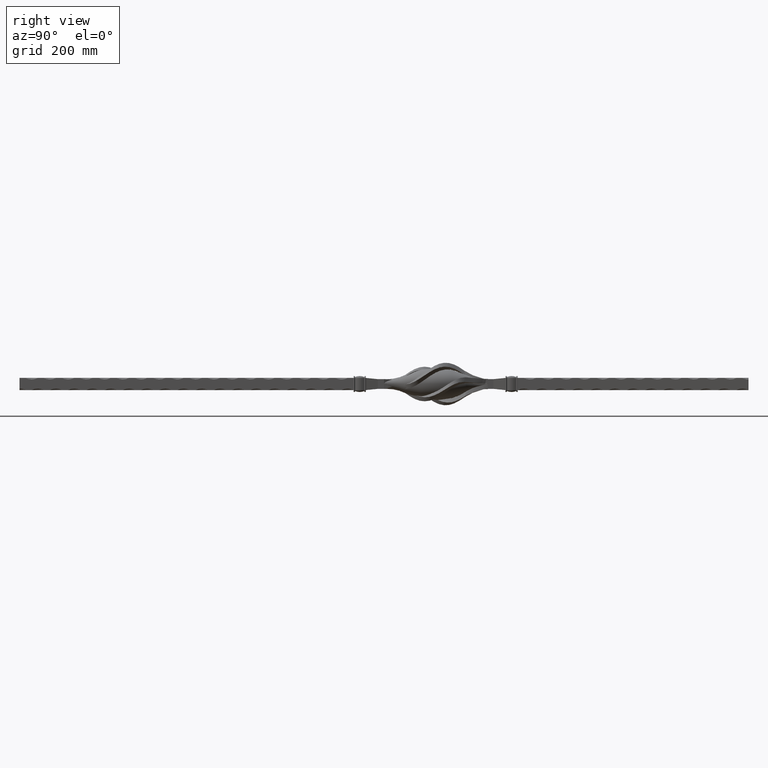
[diagram: clean part render]
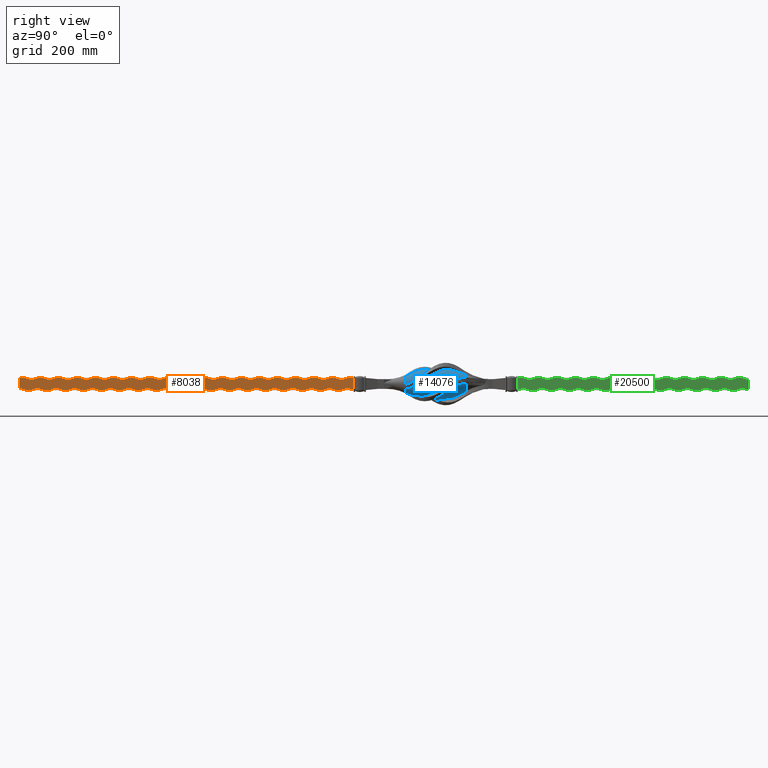
[diagram: same view with three faces highlighted in distinct colors, each labeled with its STEP entity id]
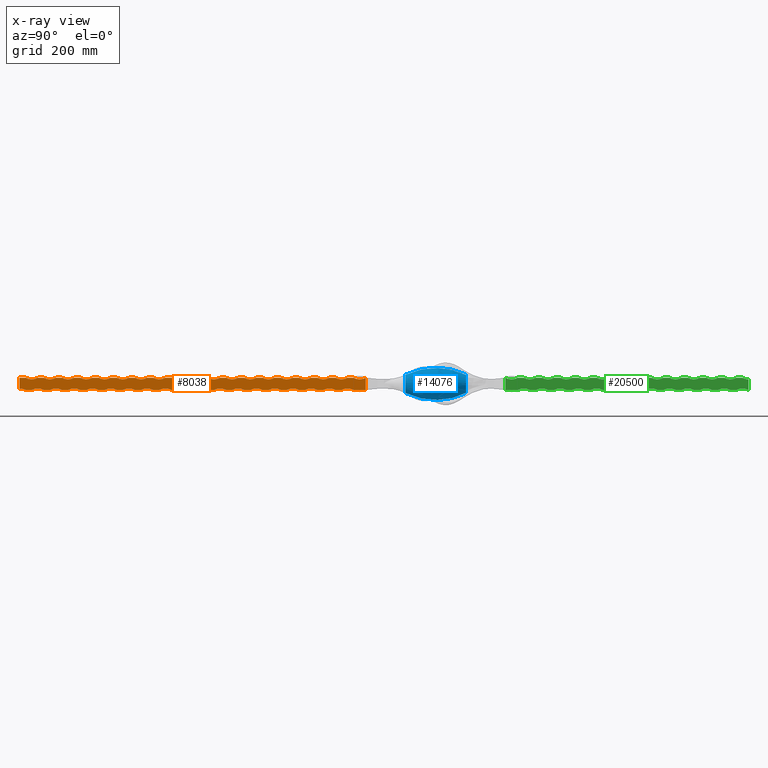
[diagram: x-ray of the same camera — body ghosted, the three highlighted faces saturated]
A machine part, right view with three faces highlighted in distinct colors.
The next image is the same camera in x-ray (body ghosted, the three faces saturated) — at least one of them is partly hidden behind the body in this view.
Their STEP definitions:

[orange] entity #8038 — the highlighted planar face has unit normal (-1, 0, 0).
#8 = DIRECTION ( 'NONE',  ( 8.163404592832022872E-17, 0.000000000000000000, 1.000000000000000000 ) ) ;
#29 = VERTEX_POINT ( 'NONE', #28721 ) ;
#70 = VECTOR ( 'NONE', #2342, 1000.000000000000000 ) ;
#85 = VERTEX_POINT ( 'NONE', #8922 ) ;
#120 = DIRECTION ( 'NONE',  ( -1.000000000000000000, 0.000000000000000000, 8.673617379884035472E-17 ) ) ;
#206 = VERTEX_POINT ( 'NONE', #24810 ) ;
#291 = CIRCLE ( 'NONE', #17628, 21.25000000000002842 ) ;
#303 = DIRECTION ( 'NONE',  ( 8.163404592832021640E-17, 0.000000000000000000, 1.000000000000000000 ) ) ;
#470 = EDGE_CURVE ( 'NONE', #749, #206, #23039, .T. ) ;
#505 = DIRECTION ( 'NONE',  ( -1.000000000000000000, 0.000000000000000000, 8.673617379884035472E-17 ) ) ;
#511 = EDGE_CURVE ( 'NONE', #17824, #22386, #21301, .T. ) ;
#518 = LINE ( 'NONE', #10863, #27985 ) ;
#532 = DIRECTION ( 'NONE',  ( 8.163404592832022872E-17, 0.000000000000000000, 1.000000000000000000 ) ) ;
#582 = AXIS2_PLACEMENT_3D ( 'NONE', #16273, #2916, #18503 ) ;
#608 = CARTESIAN_POINT ( 'NONE',  ( 9.999999999998077982, -485.0000000000000568, 28.75000000000003908 ) ) ;
#703 = DIRECTION ( 'NONE',  ( -0.000000000000000000, 1.000000000000000000, -0.000000000000000000 ) ) ;
#749 = VERTEX_POINT ( 'NONE', #9584 ) ;
#753 = AXIS2_PLACEMENT_3D ( 'NONE', #11859, #27378, #20710 ) ;
#754 = CARTESIAN_POINT ( 'NONE',  ( 10.00000000000000178, -415.0000000000036380, 10.00000000000000533 ) ) ;
#955 = EDGE_CURVE ( 'NONE', #25981, #1370, #25097, .T. ) ;
#1044 = ORIENTED_EDGE ( 'NONE', *, *, #21188, .T. ) ;
#1050 = VERTEX_POINT ( 'NONE', #2952 ) ;
#1162 = VERTEX_POINT ( 'NONE', #19199 ) ;
#1193 = VERTEX_POINT ( 'NONE', #1196 ) ;
#1196 = CARTESIAN_POINT ( 'NONE',  ( 10.00000000000000355, -665.0000000000000000, -10.00000000000193268 ) ) ;
#1198 = ORIENTED_EDGE ( 'NONE', *, *, #8741, .T. ) ;
#1222 = ORIENTED_EDGE ( 'NONE', *, *, #2557, .F. ) ;
#1279 = DIRECTION ( 'NONE',  ( -0.000000000000000000, 1.000000000000000000, -0.000000000000000000 ) ) ;
#1370 = VERTEX_POINT ( 'NONE', #26090 ) ;
#1446 = CARTESIAN_POINT ( 'NONE',  ( 10.00000000000000355, -675.0000000000000000, -10.00000000000193801 ) ) ;
#1455 = ORIENTED_EDGE ( 'NONE', *, *, #15130, .T. ) ;
#1506 = VERTEX_POINT ( 'NONE', #1746 ) ;
#1513 = EDGE_CURVE ( 'NONE', #6374, #21448, #25106, .T. ) ;
#1552 = CARTESIAN_POINT ( 'NONE',  ( 10.00000000000000355, -284.9999999999963052, -9.999999999999994671 ) ) ;
#1592 = DIRECTION ( 'NONE',  ( -1.000000000000000000, 0.000000000000000000, 8.673617379884035472E-17 ) ) ;
#1680 = CARTESIAN_POINT ( 'NONE',  ( 10.00000000000000355, -605.0000000000000000, -10.00000000000127720 ) ) ;
#1695 = LINE ( 'NONE', #26211, #21547 ) ;
#1723 = CARTESIAN_POINT ( 'NONE',  ( 9.999999999999998224, -114.9999999999999858, -9.999999999999994671 ) ) ;
#1726 = ORIENTED_EDGE ( 'NONE', *, *, #24525, .T. ) ;
#1746 = CARTESIAN_POINT ( 'NONE',  ( 10.00000000000000355, -434.9999999999993747, -9.999999999999994671 ) ) ;
#1804 = EDGE_CURVE ( 'NONE', #23132, #23990, #22986, .T. ) ;
#1927 = ORIENTED_EDGE ( 'NONE', *, *, #470, .F. ) ;
#1967 = DIRECTION ( 'NONE',  ( 8.163404592832021640E-17, 0.000000000000000000, 1.000000000000000000 ) ) ;
#2056 = VERTEX_POINT ( 'NONE', #24534 ) ;
#2099 = CARTESIAN_POINT ( 'NONE',  ( 10.00000000000000000, -175.0000000000036664, 10.00000000000000533 ) ) ;
#2280 = CARTESIAN_POINT ( 'NONE',  ( 10.00000000000000178, -385.0000000000000000, -28.74999999999900879 ) ) ;
#2298 = CARTESIAN_POINT ( 'NONE',  ( 9.999999999998074429, -315.0000000000000568, 10.00000000000000533 ) ) ;
#2340 = ORIENTED_EDGE ( 'NONE', *, *, #9283, .T. ) ;
#2342 = DIRECTION ( 'NONE',  ( -0.000000000000000000, 1.000000000000000000, -0.000000000000000000 ) ) ;
#2361 = DIRECTION ( 'NONE',  ( 8.163404592832022872E-17, 0.000000000000000000, 1.000000000000000000 ) ) ;
#2373 = CIRCLE ( 'NONE', #23271, 21.25000000000003197 ) ;
#2375 = ORIENTED_EDGE ( 'NONE', *, *, #4495, .F. ) ;
#2427 = DIRECTION ( 'NONE',  ( -0.000000000000000000, 1.000000000000000000, -0.000000000000000000 ) ) ;
#2457 = CARTESIAN_POINT ( 'NONE',  ( 10.00000000000000178, -355.0000000000000568, -28.74999999999867839 ) ) ;
#2472 = CARTESIAN_POINT ( 'NONE',  ( 10.00000000000000178, -625.0000000000036380, 10.00000000000000533 ) ) ;
#2557 = EDGE_CURVE ( 'NONE', #23431, #27333, #13601, .T. ) ;
#2609 = CARTESIAN_POINT ( 'NONE',  ( 9.999999999998074429, -255.0000000000000568, 10.00000000000000533 ) ) ;
#2619 = ORIENTED_EDGE ( 'NONE', *, *, #20930, .F. ) ;
#2674 = DIRECTION ( 'NONE',  ( 8.163404592832021640E-17, 0.000000000000000000, 1.000000000000000000 ) ) ;
#2691 = LINE ( 'NONE', #10883, #17315 ) ;
#2817 = ORIENTED_EDGE ( 'NONE', *, *, #3072, .T. ) ;
#2837 = LINE ( 'NONE', #16025, #27169 ) ;
#2916 = DIRECTION ( 'NONE',  ( -1.000000000000000000, 0.000000000000000000, 8.673617379884035472E-17 ) ) ;
#2931 = LINE ( 'NONE', #11628, #5359 ) ;
#2952 = CARTESIAN_POINT ( 'NONE',  ( 9.999999999998076206, -555.0000000000000000, 10.00000000000000533 ) ) ;
#3035 = ORIENTED_EDGE ( 'NONE', *, *, #18754, .T. ) ;
#3047 = CARTESIAN_POINT ( 'NONE',  ( 10.00000000000000355, -374.9999999999981242, -9.999999999999994671 ) ) ;
#3072 = EDGE_CURVE ( 'NONE', #23431, #16073, #12861, .T. ) ;
#3096 = EDGE_CURVE ( 'NONE', #25824, #25330, #28137, .T. ) ;
#3115 = VECTOR ( 'NONE', #8339, 1000.000000000000000 ) ;
#3236 = EDGE_CURVE ( 'NONE', #25499, #28224, #6907, .T. ) ;
#3282 = AXIS2_PLACEMENT_3D ( 'NONE', #5531, #23198, #16632 ) ;
#3301 = DIRECTION ( 'NONE',  ( -0.000000000000000000, 1.000000000000000000, -0.000000000000000000 ) ) ;
#3311 = AXIS2_PLACEMENT_3D ( 'NONE', #10440, #17236, #10815 ) ;
#3324 = DIRECTION ( 'NONE',  ( -1.000000000000000000, 0.000000000000000000, 8.673617379884035472E-17 ) ) ;
#3450 = DIRECTION ( 'NONE',  ( 8.673617379884035472E-17, 0.000000000000000000, 1.000000000000000000 ) ) ;
#3463 = CARTESIAN_POINT ( 'NONE',  ( 10.00000000000000178, -175.0000000000000568, -28.74999999999671729 ) ) ;
#3602 = VERTEX_POINT ( 'NONE', #8632 ) ;
#3721 = ORIENTED_EDGE ( 'NONE', *, *, #9066, .T. ) ;
#3743 = AXIS2_PLACEMENT_3D ( 'NONE', #18105, #20436, #16169 ) ;
#3831 = VERTEX_POINT ( 'NONE', #2298 ) ;
#3926 = DIRECTION ( 'NONE',  ( 8.163404592832022872E-17, 0.000000000000000000, 1.000000000000000000 ) ) ;
#3989 = CARTESIAN_POINT ( 'NONE',  ( 10.00000000000000355, -464.9999999999999432, -9.999999999999994671 ) ) ;
#4066 = LINE ( 'NONE', #14341, #25331 ) ;
#4095 = ORIENTED_EDGE ( 'NONE', *, *, #25397, .T. ) ;
#4097 = AXIS2_PLACEMENT_3D ( 'NONE', #23588, #21366, #3926 ) ;
#4137 = AXIS2_PLACEMENT_3D ( 'NONE', #16338, #27179, #15960 ) ;
#4153 = EDGE_CURVE ( 'NONE', #85, #5498, #2373, .T. ) ;
#4210 = CARTESIAN_POINT ( 'NONE',  ( 10.00000000000000355, -215.0000000000000853, -9.999999999997013944 ) ) ;
#4232 = DIRECTION ( 'NONE',  ( 8.163404592832021640E-17, 0.000000000000000000, 1.000000000000000000 ) ) ;
#4276 = EDGE_CURVE ( 'NONE', #15753, #11806, #4066, .T. ) ;
#4390 = CIRCLE ( 'NONE', #3743, 21.25000000000003197 ) ;
#4411 = EDGE_CURVE ( 'NONE', #17824, #12504, #12126, .T. ) ;
#4412 = EDGE_CURVE ( 'NONE', #10264, #1506, #9300, .T. ) ;
#4427 = DIRECTION ( 'NONE',  ( -1.000000000000000000, 0.000000000000000000, 8.673617379884035472E-17 ) ) ;
#4495 = EDGE_CURVE ( 'NONE', #17465, #23522, #2691, .T. ) ;
#4542 = DIRECTION ( 'NONE',  ( 8.163404592832022872E-17, 0.000000000000000000, 1.000000000000000000 ) ) ;
#4569 = CARTESIAN_POINT ( 'NONE',  ( 9.999999999999998224, -130.0000000000000000, -9.999999999999994671 ) ) ;
#4624 = ORIENTED_EDGE ( 'NONE', *, *, #7879, .F. ) ;
#4640 = EDGE_CURVE ( 'NONE', #22113, #28259, #18716, .T. ) ;
#4642 = CARTESIAN_POINT ( 'NONE',  ( 10.00000000000000000, -130.0000000000000000, 10.00000000000000533 ) ) ;
#4680 = CARTESIAN_POINT ( 'NONE',  ( 9.999999999998076206, -125.0000000000000000, 28.75000000000003908 ) ) ;
#4697 = VECTOR ( 'NONE', #8727, 1000.000000000000000 ) ;
#4761 = CARTESIAN_POINT ( 'NONE',  ( 10.00000000000000000, -130.0000000000000000, 10.00000000000000533 ) ) ;
#4797 = VERTEX_POINT ( 'NONE', #17363 ) ;
#4912 = DIRECTION ( 'NONE',  ( -0.000000000000000000, 1.000000000000000000, -0.000000000000000000 ) ) ;
#4974 = DIRECTION ( 'NONE',  ( -0.000000000000000000, 1.000000000000000000, -0.000000000000000000 ) ) ;
#5006 = LINE ( 'NONE', #14058, #9165 ) ;
#5037 = EDGE_CURVE ( 'NONE', #9529, #206, #25297, .T. ) ;
#5085 = DIRECTION ( 'NONE',  ( 8.163404592832021640E-17, 0.000000000000000000, 1.000000000000000000 ) ) ;
#5101 = CARTESIAN_POINT ( 'NONE',  ( 9.999999999999998224, -130.0000000000000000, -9.999999999999994671 ) ) ;
#5121 = ORIENTED_EDGE ( 'NONE', *, *, #5992, .T. ) ;
#5148 = DIRECTION ( 'NONE',  ( -0.000000000000000000, 1.000000000000000000, -0.000000000000000000 ) ) ;
#5155 = VERTEX_POINT ( 'NONE', #13783 ) ;
#5175 = VERTEX_POINT ( 'NONE', #7315 ) ;
#5203 = ORIENTED_EDGE ( 'NONE', *, *, #6638, .T. ) ;
#5244 = CARTESIAN_POINT ( 'NONE',  ( 10.00000000000000355, -314.9999999999969305, -9.999999999999994671 ) ) ;
#5345 = EDGE_CURVE ( 'NONE', #26759, #29, #7875, .T. ) ;
#5349 = ORIENTED_EDGE ( 'NONE', *, *, #25182, .F. ) ;
#5359 = VECTOR ( 'NONE', #27134, 1000.000000000000000 ) ;
#5424 = VECTOR ( 'NONE', #17797, 1000.000000000000000 ) ;
#5498 = VERTEX_POINT ( 'NONE', #24476 ) ;
#5512 = VERTEX_POINT ( 'NONE', #22331 ) ;
#5531 = CARTESIAN_POINT ( 'NONE',  ( 10.00000000000000178, -295.0000000000000568, -28.74999999999802824 ) ) ;
#5550 = CIRCLE ( 'NONE', #21647, 21.25000000000002842 ) ;
#5562 = CARTESIAN_POINT ( 'NONE',  ( 10.00000000000000355, -254.9999999999956231, -9.999999999999994671 ) ) ;
#5567 = LINE ( 'NONE', #21528, #22594 ) ;
#5577 = AXIS2_PLACEMENT_3D ( 'NONE', #26450, #8966, #11243 ) ;
#5619 = AXIS2_PLACEMENT_3D ( 'NONE', #3463, #1592, #12442 ) ;
#5688 = ORIENTED_EDGE ( 'NONE', *, *, #1513, .T. ) ;
#5760 = ORIENTED_EDGE ( 'NONE', *, *, #26746, .T. ) ;
#5785 = CARTESIAN_POINT ( 'NONE',  ( 10.00000000000000178, -445.0000000000036948, 10.00000000000000533 ) ) ;
#5786 = EDGE_CURVE ( 'NONE', #2056, #24458, #24003, .T. ) ;
#5808 = VERTEX_POINT ( 'NONE', #1446 ) ;
#5905 = LINE ( 'NONE', #17758, #12884 ) ;
#5938 = VECTOR ( 'NONE', #9270, 1000.000000000000000 ) ;
#5957 = DIRECTION ( 'NONE',  ( 8.163404592832022872E-17, 0.000000000000000000, 1.000000000000000000 ) ) ;
#5992 = EDGE_CURVE ( 'NONE', #10612, #20402, #291, .T. ) ;
#6155 = CARTESIAN_POINT ( 'NONE',  ( 9.999999999999998224, -130.0000000000000000, -9.999999999999994671 ) ) ;
#6273 = LINE ( 'NONE', #7659, #27530 ) ;
#6324 = DIRECTION ( 'NONE',  ( -8.673617379884035472E-17, 0.000000000000000000, -1.000000000000000000 ) ) ;
#6356 = EDGE_CURVE ( 'NONE', #25741, #21919, #12132, .T. ) ;
#6374 = VERTEX_POINT ( 'NONE', #2472 ) ;
#6499 = ORIENTED_EDGE ( 'NONE', *, *, #26285, .T. ) ;
#6638 = EDGE_CURVE ( 'NONE', #22047, #19713, #11431, .T. ) ;
#6729 = EDGE_CURVE ( 'NONE', #22047, #18749, #14886, .T. ) ;
#6768 = EDGE_CURVE ( 'NONE', #15829, #25824, #7545, .T. ) ;
#6907 = CIRCLE ( 'NONE', #5577, 21.25000000000002842 ) ;
#6920 = CARTESIAN_POINT ( 'NONE',  ( 9.999999999999998224, -130.0000000000000000, -9.999999999999994671 ) ) ;
#6929 = DIRECTION ( 'NONE',  ( -1.000000000000000000, 0.000000000000000000, 8.673617379884035472E-17 ) ) ;
#6946 = DIRECTION ( 'NONE',  ( -0.000000000000000000, 1.000000000000000000, -0.000000000000000000 ) ) ;
#6999 = AXIS2_PLACEMENT_3D ( 'NONE', #15929, #6929, #2674 ) ;
#7013 = DIRECTION ( 'NONE',  ( -0.000000000000000000, 1.000000000000000000, -0.000000000000000000 ) ) ;
#7039 = AXIS2_PLACEMENT_3D ( 'NONE', #2280, #20211, #8983 ) ;
#7118 = DIRECTION ( 'NONE',  ( -0.000000000000000000, 1.000000000000000000, -0.000000000000000000 ) ) ;
#7212 = LINE ( 'NONE', #22653, #24262 ) ;
#7299 = VERTEX_POINT ( 'NONE', #21726 ) ;
#7315 = CARTESIAN_POINT ( 'NONE',  ( 10.00000000000000355, -404.9999999999987494, -9.999999999999994671 ) ) ;
#7333 = VECTOR ( 'NONE', #26366, 1000.000000000000000 ) ;
#7538 = EDGE_LOOP ( 'NONE', ( #11810, #1044, #11731, #18192, #25469, #8233, #13310, #8248, #6499, #15049, #5203, #23495, #20780, #4624, #15686, #11126, #2340, #15375, #22230, #14007, #25451, #1927, #22878, #5349, #20242, #23211, #25244, #2375, #22713, #1222, #2817, #27455, #20339, #2619, #14996, #19383, #3035, #13758, #5688, #20290, #26243, #13259, #20691, #1455, #9504, #13257, #11457, #25867, #4095, #9841, #16222, #24472, #12780, #17061, #24517, #22566, #24910, #17034, #15514, #10728, #12712, #3721, #27540, #1726, #15630, #21194, #16196, #26764, #12511, #1198, #21270, #18031, #22880, #25290, #5760, #5121, #25213, #28718 ) ) ;
#7545 = CIRCLE ( 'NONE', #21010, 21.25000000000002842 ) ;
#7611 = CARTESIAN_POINT ( 'NONE',  ( 9.999999999999998224, -130.0000000000000000, -9.999999999999994671 ) ) ;
#7659 = CARTESIAN_POINT ( 'NONE',  ( 9.999999999999998224, -130.0000000000000000, -9.999999999999994671 ) ) ;
#7693 = VERTEX_POINT ( 'NONE', #5244 ) ;
#7725 = LINE ( 'NONE', #21985, #19897 ) ;
#7875 = CIRCLE ( 'NONE', #582, 21.25000000000002842 ) ;
#7879 = EDGE_CURVE ( 'NONE', #17820, #25334, #518, .T. ) ;
#7892 = VERTEX_POINT ( 'NONE', #12136 ) ;
#7894 = AXIS2_PLACEMENT_3D ( 'NONE', #16676, #3324, #11911 ) ;
#7951 = VECTOR ( 'NONE', #18584, 1000.000000000000000 ) ;
#8012 = CARTESIAN_POINT ( 'NONE',  ( 9.999999999999998224, -130.0000000000000000, -9.999999999999994671 ) ) ;
#8031 = AXIS2_PLACEMENT_3D ( 'NONE', #8955, #13182, #1967 ) ;
#8038 = ADVANCED_FACE ( 'NONE', ( #20005 ), #25609, .F. ) ;
#8062 = DIRECTION ( 'NONE',  ( 8.163404592832021640E-17, 0.000000000000000000, 1.000000000000000000 ) ) ;
#8063 = DIRECTION ( 'NONE',  ( -1.000000000000000000, 0.000000000000000000, 8.673617379884035472E-17 ) ) ;
#8148 = DIRECTION ( 'NONE',  ( 8.163404592832022872E-17, 0.000000000000000000, 1.000000000000000000 ) ) ;
#8220 = LINE ( 'NONE', #26732, #13100 ) ;
#8233 = ORIENTED_EDGE ( 'NONE', *, *, #4411, .F. ) ;
#8235 = CARTESIAN_POINT ( 'NONE',  ( 10.00000000000000355, -515.0000000000000000, -10.00000000000029310 ) ) ;
#8248 = ORIENTED_EDGE ( 'NONE', *, *, #26902, .F. ) ;
#8250 = CARTESIAN_POINT ( 'NONE',  ( 10.00000000000000000, -130.0000000000000000, 10.00000000000000533 ) ) ;
#8283 = DIRECTION ( 'NONE',  ( -0.000000000000000000, 1.000000000000000000, -0.000000000000000000 ) ) ;
#8339 = DIRECTION ( 'NONE',  ( -0.000000000000000000, 1.000000000000000000, -0.000000000000000000 ) ) ;
#8372 = CARTESIAN_POINT ( 'NONE',  ( 9.999999999999998224, -130.0000000000000000, -9.999999999999994671 ) ) ;
#8383 = CARTESIAN_POINT ( 'NONE',  ( 10.00000000000000355, -545.0000000000000000, -10.00000000000062172 ) ) ;
#8393 = CARTESIAN_POINT ( 'NONE',  ( 9.999999999999998224, -130.0000000000000000, -9.999999999999994671 ) ) ;
#8476 = VECTOR ( 'NONE', #2427, 1000.000000000000000 ) ;
#8485 = DIRECTION ( 'NONE',  ( 8.163404592832022872E-17, 0.000000000000000000, 1.000000000000000000 ) ) ;
#8531 = CIRCLE ( 'NONE', #4097, 21.25000000000002842 ) ;
#8632 = CARTESIAN_POINT ( 'NONE',  ( 10.00000000000000355, -134.9999999999931788, -9.999999999999994671 ) ) ;
#8633 = CARTESIAN_POINT ( 'NONE',  ( 10.00000000000000355, -495.0000000000005684, -9.999999999999994671 ) ) ;
#8727 = DIRECTION ( 'NONE',  ( -0.000000000000000000, 1.000000000000000000, -0.000000000000000000 ) ) ;
#8738 = DIRECTION ( 'NONE',  ( 8.163404592832021640E-17, 0.000000000000000000, 1.000000000000000000 ) ) ;
#8741 = EDGE_CURVE ( 'NONE', #7299, #16811, #25178, .T. ) ;
#8922 = CARTESIAN_POINT ( 'NONE',  ( 10.00000000000000178, -655.0000000000036380, 10.00000000000000533 ) ) ;
#8955 = CARTESIAN_POINT ( 'NONE',  ( 9.999999999998076206, -365.0000000000000568, 28.75000000000003908 ) ) ;
#8966 = DIRECTION ( 'NONE',  ( -1.000000000000000000, 0.000000000000000000, 8.673617379884035472E-17 ) ) ;
#8983 = DIRECTION ( 'NONE',  ( 8.163404592832022872E-17, 0.000000000000000000, 1.000000000000000000 ) ) ;
#9046 = VERTEX_POINT ( 'NONE', #13199 ) ;
#9066 = EDGE_CURVE ( 'NONE', #5512, #5175, #11266, .T. ) ;
#9136 = DIRECTION ( 'NONE',  ( -0.000000000000000000, 1.000000000000000000, -0.000000000000000000 ) ) ;
#9146 = DIRECTION ( 'NONE',  ( 8.163404592832022872E-17, 0.000000000000000000, 1.000000000000000000 ) ) ;
#9165 = VECTOR ( 'NONE', #7013, 1000.000000000000000 ) ;
#9270 = DIRECTION ( 'NONE',  ( -0.000000000000000000, 1.000000000000000000, -0.000000000000000000 ) ) ;
#9283 = EDGE_CURVE ( 'NONE', #26818, #3831, #27224, .T. ) ;
#9300 = CIRCLE ( 'NONE', #13652, 21.25000000000002842 ) ;
#9398 = CARTESIAN_POINT ( 'NONE',  ( 9.999999999998076206, -525.0000000000000000, 10.00000000000000533 ) ) ;
#9399 = VERTEX_POINT ( 'NONE', #12601 ) ;
#9483 = AXIS2_PLACEMENT_3D ( 'NONE', #10653, #15139, #28132 ) ;
#9504 = ORIENTED_EDGE ( 'NONE', *, *, #13672, .T. ) ;
#9529 = VERTEX_POINT ( 'NONE', #22268 ) ;
#9541 = CARTESIAN_POINT ( 'NONE',  ( 9.999999999998077982, -665.0000000000000000, 28.75000000000003908 ) ) ;
#9551 = CARTESIAN_POINT ( 'NONE',  ( 10.00000000000000000, -130.0000000000000000, 10.00000000000000533 ) ) ;
#9579 = EDGE_CURVE ( 'NONE', #20402, #22113, #24436, .T. ) ;
#9584 = CARTESIAN_POINT ( 'NONE',  ( 10.00000000000000178, -385.0000000000036380, 10.00000000000000533 ) ) ;
#9638 = EDGE_CURVE ( 'NONE', #15670, #25334, #28582, .T. ) ;
#9674 = CARTESIAN_POINT ( 'NONE',  ( 9.999999999998076206, -465.0000000000000568, 10.00000000000000533 ) ) ;
#9841 = ORIENTED_EDGE ( 'NONE', *, *, #5345, .T. ) ;
#9934 = CARTESIAN_POINT ( 'NONE',  ( 10.00000000000000355, -155.0000000000000284, -9.999999999996358468 ) ) ;
#10220 = CARTESIAN_POINT ( 'NONE',  ( 9.999999999999998224, -130.0000000000000000, -9.999999999999994671 ) ) ;
#10260 = CARTESIAN_POINT ( 'NONE',  ( 9.999999999999998224, -130.0000000000000000, -9.999999999999994671 ) ) ;
#10264 = VERTEX_POINT ( 'NONE', #23498 ) ;
#10346 = DIRECTION ( 'NONE',  ( -1.000000000000000000, 0.000000000000000000, 8.673617379884035472E-17 ) ) ;
#10413 = DIRECTION ( 'NONE',  ( 8.163404592832022872E-17, 0.000000000000000000, 1.000000000000000000 ) ) ;
#10440 = CARTESIAN_POINT ( 'NONE',  ( 9.999999999998077982, -635.0000000000000000, 28.75000000000003908 ) ) ;
#10454 = CIRCLE ( 'NONE', #25292, 21.25000000000002842 ) ;
#10465 = DIRECTION ( 'NONE',  ( 8.163404592832022872E-17, 0.000000000000000000, 1.000000000000000000 ) ) ;
#10557 = AXIS2_PLACEMENT_3D ( 'NONE', #19292, #10346, #14654 ) ;
#10612 = VERTEX_POINT ( 'NONE', #4210 ) ;
#10628 = DIRECTION ( 'NONE',  ( -1.000000000000000000, 0.000000000000000000, 8.673617379884035472E-17 ) ) ;
#10640 = CARTESIAN_POINT ( 'NONE',  ( 9.999999999999998224, -130.0000000000000000, -9.999999999999994671 ) ) ;
#10653 = CARTESIAN_POINT ( 'NONE',  ( 9.999999999998077982, -515.0000000000000000, 28.75000000000003908 ) ) ;
#10728 = ORIENTED_EDGE ( 'NONE', *, *, #4412, .T. ) ;
#10743 = CARTESIAN_POINT ( 'NONE',  ( 10.00000000000000000, -295.0000000000036380, 10.00000000000000533 ) ) ;
#10750 = EDGE_CURVE ( 'NONE', #22141, #12052, #11895, .T. ) ;
#10779 = EDGE_CURVE ( 'NONE', #15670, #19713, #2837, .T. ) ;
#10783 = EDGE_CURVE ( 'NONE', #12572, #10264, #24380, .T. ) ;
#10815 = DIRECTION ( 'NONE',  ( 8.163404592832021640E-17, 0.000000000000000000, 1.000000000000000000 ) ) ;
#10863 = CARTESIAN_POINT ( 'NONE',  ( 10.00000000000000000, -130.0000000000000000, 10.00000000000000533 ) ) ;
#10883 = CARTESIAN_POINT ( 'NONE',  ( 10.00000000000000000, -130.0000000000000000, 10.00000000000000533 ) ) ;
#10936 = DIRECTION ( 'NONE',  ( -0.000000000000000000, 1.000000000000000000, -0.000000000000000000 ) ) ;
#10976 = CARTESIAN_POINT ( 'NONE',  ( 10.00000000000000178, -325.0000000000000568, -28.74999999999835154 ) ) ;
#11126 = ORIENTED_EDGE ( 'NONE', *, *, #15558, .F. ) ;
#11243 = DIRECTION ( 'NONE',  ( 8.163404592832022872E-17, 0.000000000000000000, 1.000000000000000000 ) ) ;
#11266 = CIRCLE ( 'NONE', #25631, 21.25000000000002842 ) ;
#11312 = EDGE_CURVE ( 'NONE', #9046, #12504, #27139, .T. ) ;
#11326 = LINE ( 'NONE', #28754, #4697 ) ;
#11357 = LINE ( 'NONE', #4569, #5424 ) ;
#11411 = CARTESIAN_POINT ( 'NONE',  ( 9.999999999998076206, -495.0000000000000568, 10.00000000000000533 ) ) ;
#11414 = CARTESIAN_POINT ( 'NONE',  ( 10.00000000000000000, -235.0000000000036380, 10.00000000000000533 ) ) ;
#11431 = CIRCLE ( 'NONE', #10557, 21.25000000000003197 ) ;
#11457 = ORIENTED_EDGE ( 'NONE', *, *, #19396, .T. ) ;
#11516 = CARTESIAN_POINT ( 'NONE',  ( 9.999999999998077982, -425.0000000000000568, 28.75000000000003908 ) ) ;
#11584 = CARTESIAN_POINT ( 'NONE',  ( 9.999999999998074429, -685.0000000000000000, 10.00000000000000533 ) ) ;
#11598 = VERTEX_POINT ( 'NONE', #1723 ) ;
#11628 = CARTESIAN_POINT ( 'NONE',  ( 10.00000000000000000, -130.0000000000000000, 10.00000000000000533 ) ) ;
#11656 = DIRECTION ( 'NONE',  ( -1.000000000000000000, 0.000000000000000000, 8.673617379884035472E-17 ) ) ;
#11731 = ORIENTED_EDGE ( 'NONE', *, *, #23042, .T. ) ;
#11756 = VERTEX_POINT ( 'NONE', #754 ) ;
#11806 = VERTEX_POINT ( 'NONE', #11584 ) ;
#11810 = ORIENTED_EDGE ( 'NONE', *, *, #24714, .T. ) ;
#11859 = CARTESIAN_POINT ( 'NONE',  ( 9.999999999998076206, -275.0000000000000000, 28.75000000000003908 ) ) ;
#11895 = LINE ( 'NONE', #5101, #15362 ) ;
#11911 = DIRECTION ( 'NONE',  ( 8.163404592832022872E-17, 0.000000000000000000, 1.000000000000000000 ) ) ;
#11982 = CARTESIAN_POINT ( 'NONE',  ( 10.00000000000000000, -130.0000000000000000, 10.00000000000000533 ) ) ;
#12052 = VERTEX_POINT ( 'NONE', #8383 ) ;
#12126 = LINE ( 'NONE', #26212, #20112 ) ;
#12132 = CIRCLE ( 'NONE', #6999, 21.25000000000003197 ) ;
#12136 = CARTESIAN_POINT ( 'NONE',  ( 10.00000000000000000, -325.0000000000036948, 10.00000000000000533 ) ) ;
#12200 = DIRECTION ( 'NONE',  ( -1.000000000000000000, 0.000000000000000000, 8.673617379884035472E-17 ) ) ;
#12330 = DIRECTION ( 'NONE',  ( -1.000000000000000000, 0.000000000000000000, 8.673617379884035472E-17 ) ) ;
#12442 = DIRECTION ( 'NONE',  ( 8.163404592832022872E-17, 0.000000000000000000, 1.000000000000000000 ) ) ;
#12458 = LINE ( 'NONE', #13847, #22492 ) ;
#12482 = AXIS2_PLACEMENT_3D ( 'NONE', #17634, #19871, #8 ) ;
#12488 = DIRECTION ( 'NONE',  ( 8.163404592832021640E-17, 0.000000000000000000, 1.000000000000000000 ) ) ;
#12504 = VERTEX_POINT ( 'NONE', #21783 ) ;
#12511 = ORIENTED_EDGE ( 'NONE', *, *, #26146, .T. ) ;
#12525 = DIRECTION ( 'NONE',  ( -0.000000000000000000, 1.000000000000000000, -0.000000000000000000 ) ) ;
#12554 = CIRCLE ( 'NONE', #18252, 21.25000000000002842 ) ;
#12572 = VERTEX_POINT ( 'NONE', #3989 ) ;
#12601 = CARTESIAN_POINT ( 'NONE',  ( 9.999999999998076206, -435.0000000000000568, 10.00000000000000533 ) ) ;
#12607 = DIRECTION ( 'NONE',  ( -0.000000000000000000, 1.000000000000000000, -0.000000000000000000 ) ) ;
#12619 = DIRECTION ( 'NONE',  ( -0.000000000000000000, 1.000000000000000000, -0.000000000000000000 ) ) ;
#12652 = DIRECTION ( 'NONE',  ( -1.000000000000000000, 0.000000000000000000, 8.673617379884035472E-17 ) ) ;
#12712 = ORIENTED_EDGE ( 'NONE', *, *, #23245, .T. ) ;
#12734 = VECTOR ( 'NONE', #14355, 1000.000000000000000 ) ;
#12780 = ORIENTED_EDGE ( 'NONE', *, *, #10750, .T. ) ;
#12861 = CIRCLE ( 'NONE', #9483, 21.25000000000003197 ) ;
#12884 = VECTOR ( 'NONE', #19907, 1000.000000000000000 ) ;
#12886 = VERTEX_POINT ( 'NONE', #27074 ) ;
#13098 = CARTESIAN_POINT ( 'NONE',  ( 10.00000000000000178, -415.0000000000000568, -28.74999999999933920 ) ) ;
#13100 = VECTOR ( 'NONE', #10936, 1000.000000000000000 ) ;
#13106 = AXIS2_PLACEMENT_3D ( 'NONE', #608, #505, #24913 ) ;
#13175 = CARTESIAN_POINT ( 'NONE',  ( 10.00000000000000355, -555.0000000000018190, -9.999999999999994671 ) ) ;
#13182 = DIRECTION ( 'NONE',  ( -1.000000000000000000, 0.000000000000000000, 8.673617379884035472E-17 ) ) ;
#13186 = EDGE_CURVE ( 'NONE', #1193, #23959, #20820, .T. ) ;
#13199 = CARTESIAN_POINT ( 'NONE',  ( 10.00000000000000000, -114.9999999999999858, 10.00000000000000533 ) ) ;
#13208 = VERTEX_POINT ( 'NONE', #5785 ) ;
#13211 = CIRCLE ( 'NONE', #7039, 21.25000000000002842 ) ;
#13217 = DIRECTION ( 'NONE',  ( 8.163404592832021640E-17, 0.000000000000000000, 1.000000000000000000 ) ) ;
#13239 = CIRCLE ( 'NONE', #21848, 21.25000000000003197 ) ;
#13257 = ORIENTED_EDGE ( 'NONE', *, *, #13186, .T. ) ;
#13258 = DIRECTION ( 'NONE',  ( -1.000000000000000000, 0.000000000000000000, 8.673617379884035472E-17 ) ) ;
#13259 = ORIENTED_EDGE ( 'NONE', *, *, #27504, .F. ) ;
#13299 = EDGE_CURVE ( 'NONE', #23990, #2056, #26701, .T. ) ;
#13310 = ORIENTED_EDGE ( 'NONE', *, *, #511, .T. ) ;
#13373 = AXIS2_PLACEMENT_3D ( 'NONE', #2457, #120, #2361 ) ;
#13402 = EDGE_CURVE ( 'NONE', #7892, #3831, #21527, .T. ) ;
#13575 = CIRCLE ( 'NONE', #4137, 21.25000000000003197 ) ;
#13601 = LINE ( 'NONE', #11982, #17075 ) ;
#13652 = AXIS2_PLACEMENT_3D ( 'NONE', #19728, #21845, #10413 ) ;
#13672 = EDGE_CURVE ( 'NONE', #5808, #1193, #21519, .T. ) ;
#13758 = ORIENTED_EDGE ( 'NONE', *, *, #15702, .F. ) ;
#13762 = LINE ( 'NONE', #10220, #27607 ) ;
#13783 = CARTESIAN_POINT ( 'NONE',  ( 9.999999999998076206, -405.0000000000000000, 10.00000000000000533 ) ) ;
#13847 = CARTESIAN_POINT ( 'NONE',  ( 9.999999999999998224, -130.0000000000000000, -9.999999999999994671 ) ) ;
#13906 = CARTESIAN_POINT ( 'NONE',  ( 9.999999999998074429, -195.0000000000000568, 10.00000000000000533 ) ) ;
#13908 = VECTOR ( 'NONE', #703, 1000.000000000000000 ) ;
#13948 = AXIS2_PLACEMENT_3D ( 'NONE', #24568, #26769, #13217 ) ;
#14007 = ORIENTED_EDGE ( 'NONE', *, *, #19436, .F. ) ;
#14058 = CARTESIAN_POINT ( 'NONE',  ( 10.00000000000000000, -130.0000000000000000, 10.00000000000000533 ) ) ;
#14171 = EDGE_CURVE ( 'NONE', #22421, #21919, #23200, .T. ) ;
#14183 = CARTESIAN_POINT ( 'NONE',  ( 10.00000000000000355, -194.9999999999944862, -9.999999999999994671 ) ) ;
#14208 = EDGE_CURVE ( 'NONE', #13208, #23522, #4390, .T. ) ;
#14236 = DIRECTION ( 'NONE',  ( 8.163404592832021640E-17, 0.000000000000000000, 1.000000000000000000 ) ) ;
#14341 = CARTESIAN_POINT ( 'NONE',  ( 9.999999999998072653, -685.0000000000000000, -9.999999999999994671 ) ) ;
#14355 = DIRECTION ( 'NONE',  ( -0.000000000000000000, 1.000000000000000000, -0.000000000000000000 ) ) ;
#14441 = CARTESIAN_POINT ( 'NONE',  ( 10.00000000000000178, -565.0000000000037517, 10.00000000000000533 ) ) ;
#14511 = DIRECTION ( 'NONE',  ( 8.163404592832022872E-17, 0.000000000000000000, 1.000000000000000000 ) ) ;
#14607 = DIRECTION ( 'NONE',  ( -1.000000000000000000, 0.000000000000000000, 8.673617379884035472E-17 ) ) ;
#14654 = DIRECTION ( 'NONE',  ( 8.163404592832021640E-17, 0.000000000000000000, 1.000000000000000000 ) ) ;
#14834 = DIRECTION ( 'NONE',  ( -0.000000000000000000, 1.000000000000000000, -0.000000000000000000 ) ) ;
#14839 = LINE ( 'NONE', #20949, #12734 ) ;
#14871 = VECTOR ( 'NONE', #12619, 1000.000000000000000 ) ;
#14886 = LINE ( 'NONE', #23652, #18006 ) ;
#14900 = CARTESIAN_POINT ( 'NONE',  ( 10.00000000000000000, -130.0000000000000000, 10.00000000000000533 ) ) ;
#14974 = EDGE_CURVE ( 'NONE', #1162, #15829, #27665, .T. ) ;
#14996 = ORIENTED_EDGE ( 'NONE', *, *, #6356, .T. ) ;
#15049 = ORIENTED_EDGE ( 'NONE', *, *, #6729, .F. ) ;
#15130 = EDGE_CURVE ( 'NONE', #15753, #5808, #27996, .T. ) ;
#15139 = DIRECTION ( 'NONE',  ( -1.000000000000000000, 0.000000000000000000, 8.673617379884035472E-17 ) ) ;
#15210 = AXIS2_PLACEMENT_3D ( 'NONE', #23264, #16787, #27832 ) ;
#15362 = VECTOR ( 'NONE', #4912, 1000.000000000000000 ) ;
#15375 = ORIENTED_EDGE ( 'NONE', *, *, #13402, .F. ) ;
#15420 = CARTESIAN_POINT ( 'NONE',  ( 10.00000000000000000, -145.0000000000036380, 10.00000000000000533 ) ) ;
#15514 = ORIENTED_EDGE ( 'NONE', *, *, #10783, .T. ) ;
#15558 = EDGE_CURVE ( 'NONE', #26818, #4797, #11326, .T. ) ;
#15630 = ORIENTED_EDGE ( 'NONE', *, *, #18640, .T. ) ;
#15670 = VERTEX_POINT ( 'NONE', #11414 ) ;
#15684 = DIRECTION ( 'NONE',  ( 8.163404592832021640E-17, 0.000000000000000000, 1.000000000000000000 ) ) ;
#15686 = ORIENTED_EDGE ( 'NONE', *, *, #27747, .T. ) ;
#15702 = EDGE_CURVE ( 'NONE', #6374, #23761, #28655, .T. ) ;
#15753 = VERTEX_POINT ( 'NONE', #20925 ) ;
#15752 = DIRECTION ( 'NONE',  ( -1.000000000000000000, 0.000000000000000000, 8.673617379884035472E-17 ) ) ;
#15756 = DIRECTION ( 'NONE',  ( -0.000000000000000000, 1.000000000000000000, -0.000000000000000000 ) ) ;
#15829 = VERTEX_POINT ( 'NONE', #8235 ) ;
#15881 = VECTOR ( 'NONE', #12607, 1000.000000000000000 ) ;
#15882 = VECTOR ( 'NONE', #16932, 1000.000000000000000 ) ;
#15929 = CARTESIAN_POINT ( 'NONE',  ( 9.999999999998077982, -575.0000000000001137, 28.75000000000003908 ) ) ;
#15960 = DIRECTION ( 'NONE',  ( 8.163404592832021640E-17, 0.000000000000000000, 1.000000000000000000 ) ) ;
#15973 = CARTESIAN_POINT ( 'NONE',  ( 10.00000000000000355, -485.0000000000000568, -9.999999999999966249 ) ) ;
#15978 = CARTESIAN_POINT ( 'NONE',  ( 9.999999999998076206, -645.0000000000000000, 10.00000000000000533 ) ) ;
#16025 = CARTESIAN_POINT ( 'NONE',  ( 10.00000000000000000, -130.0000000000000000, 10.00000000000000533 ) ) ;
#16073 = VERTEX_POINT ( 'NONE', #9398 ) ;
#16114 = AXIS2_PLACEMENT_3D ( 'NONE', #16387, #25206, #5085 ) ;
#16169 = DIRECTION ( 'NONE',  ( 8.163404592832021640E-17, 0.000000000000000000, 1.000000000000000000 ) ) ;
#16196 = ORIENTED_EDGE ( 'NONE', *, *, #27415, .T. ) ;
#16222 = ORIENTED_EDGE ( 'NONE', *, *, #26972, .T. ) ;
#16273 = CARTESIAN_POINT ( 'NONE',  ( 10.00000000000000178, -595.0000000000000000, -28.75000000000130385 ) ) ;
#16338 = CARTESIAN_POINT ( 'NONE',  ( 9.999999999998077982, -605.0000000000000000, 28.75000000000003908 ) ) ;
#16387 = CARTESIAN_POINT ( 'NONE',  ( 9.999999999998076206, -335.0000000000000568, 28.75000000000003908 ) ) ;
#16506 = CARTESIAN_POINT ( 'NONE',  ( 9.999999999998076206, -585.0000000000001137, 10.00000000000000533 ) ) ;
#16608 = VECTOR ( 'NONE', #23147, 1000.000000000000000 ) ;
#16632 = DIRECTION ( 'NONE',  ( 8.163404592832022872E-17, 0.000000000000000000, 1.000000000000000000 ) ) ;
#16676 = CARTESIAN_POINT ( 'NONE',  ( 10.00000000000000178, -145.0000000000000284, -28.74999999999638689 ) ) ;
#16787 = DIRECTION ( 'NONE',  ( -1.000000000000000000, 0.000000000000000000, 8.673617379884035472E-17 ) ) ;
#16811 = VERTEX_POINT ( 'NONE', #1552 ) ;
#16932 = DIRECTION ( 'NONE',  ( -0.000000000000000000, 1.000000000000000000, -0.000000000000000000 ) ) ;
#17011 = LINE ( 'NONE', #18205, #7951 ) ;
#17034 = ORIENTED_EDGE ( 'NONE', *, *, #28187, .T. ) ;
#17061 = ORIENTED_EDGE ( 'NONE', *, *, #23760, .T. ) ;
#17075 = VECTOR ( 'NONE', #3301, 1000.000000000000000 ) ;
#17209 = DIRECTION ( 'NONE',  ( -0.000000000000000000, 1.000000000000000000, -0.000000000000000000 ) ) ;
#17236 = DIRECTION ( 'NONE',  ( -1.000000000000000000, 0.000000000000000000, 8.673617379884035472E-17 ) ) ;
#17308 = VECTOR ( 'NONE', #5148, 1000.000000000000000 ) ;
#17315 = VECTOR ( 'NONE', #18088, 1000.000000000000000 ) ;
#17363 = CARTESIAN_POINT ( 'NONE',  ( 9.999999999998074429, -285.0000000000000568, 10.00000000000000533 ) ) ;
#17397 = VERTEX_POINT ( 'NONE', #20828 ) ;
#17465 = VERTEX_POINT ( 'NONE', #21652 ) ;
#17567 = DIRECTION ( 'NONE',  ( -1.000000000000000000, 0.000000000000000000, 8.673617379884035472E-17 ) ) ;
#17628 = AXIS2_PLACEMENT_3D ( 'NONE', #23128, #20837, #25662 ) ;
#17634 = CARTESIAN_POINT ( 'NONE',  ( 10.00000000000000178, -685.0000000000000000, -28.75000000000196465 ) ) ;
#17652 = CIRCLE ( 'NONE', #22752, 21.25000000000003197 ) ;
#17758 = CARTESIAN_POINT ( 'NONE',  ( 9.999999999999998224, -130.0000000000000000, -9.999999999999994671 ) ) ;
#17797 = DIRECTION ( 'NONE',  ( -0.000000000000000000, 1.000000000000000000, -0.000000000000000000 ) ) ;
#17820 = VERTEX_POINT ( 'NONE', #25534 ) ;
#17824 = VERTEX_POINT ( 'NONE', #15420 ) ;
#17917 = VERTEX_POINT ( 'NONE', #25992 ) ;
#17952 = LINE ( 'NONE', #22228, #25255 ) ;
#18006 = VECTOR ( 'NONE', #14834, 1000.000000000000000 ) ;
#18031 = ORIENTED_EDGE ( 'NONE', *, *, #1804, .T. ) ;
#18088 = DIRECTION ( 'NONE',  ( -0.000000000000000000, 1.000000000000000000, -0.000000000000000000 ) ) ;
#18105 = CARTESIAN_POINT ( 'NONE',  ( 9.999999999998077982, -455.0000000000000568, 28.75000000000003908 ) ) ;
#18192 = ORIENTED_EDGE ( 'NONE', *, *, #22272, .F. ) ;
#18205 = CARTESIAN_POINT ( 'NONE',  ( 9.999999999999998224, -130.0000000000000000, -9.999999999999994671 ) ) ;
#18252 = AXIS2_PLACEMENT_3D ( 'NONE', #20271, #24821, #9146 ) ;
#18381 = EDGE_CURVE ( 'NONE', #5175, #17397, #12458, .T. ) ;
#18389 = EDGE_CURVE ( 'NONE', #11756, #9399, #17652, .T. ) ;
#18503 = DIRECTION ( 'NONE',  ( 8.163404592832022872E-17, 0.000000000000000000, 1.000000000000000000 ) ) ;
#18584 = DIRECTION ( 'NONE',  ( -0.000000000000000000, 1.000000000000000000, -0.000000000000000000 ) ) ;
#18589 = AXIS2_PLACEMENT_3D ( 'NONE', #22070, #13258, #8738 ) ;
#18623 = DIRECTION ( 'NONE',  ( -0.000000000000000000, 1.000000000000000000, -0.000000000000000000 ) ) ;
#18625 = CARTESIAN_POINT ( 'NONE',  ( 10.00000000000000178, -595.0000000000036380, 10.00000000000000533 ) ) ;
#18636 = VERTEX_POINT ( 'NONE', #26293 ) ;
#18640 = EDGE_CURVE ( 'NONE', #22523, #25981, #1695, .T. ) ;
#18695 = EDGE_CURVE ( 'NONE', #18636, #7693, #5550, .T. ) ;
#18716 = CIRCLE ( 'NONE', #5619, 21.25000000000002842 ) ;
#18736 = CIRCLE ( 'NONE', #23819, 21.25000000000003197 ) ;
#18749 = VERTEX_POINT ( 'NONE', #13906 ) ;
#18754 = EDGE_CURVE ( 'NONE', #22421, #23761, #13575, .T. ) ;
#18823 = CARTESIAN_POINT ( 'NONE',  ( 9.999999999999998224, -130.0000000000000000, -9.999999999999994671 ) ) ;
#18938 = CARTESIAN_POINT ( 'NONE',  ( 10.00000000000000355, -185.0000000000000568, -9.999999999996687094 ) ) ;
#18971 = DIRECTION ( 'NONE',  ( -0.000000000000000000, 1.000000000000000000, -0.000000000000000000 ) ) ;
#19199 = CARTESIAN_POINT ( 'NONE',  ( 10.00000000000000355, -525.0000000000012506, -9.999999999999994671 ) ) ;
#19292 = CARTESIAN_POINT ( 'NONE',  ( 9.999999999998076206, -215.0000000000000853, 28.75000000000003908 ) ) ;
#19294 = EDGE_CURVE ( 'NONE', #17465, #27333, #20695, .T. ) ;
#19299 = CARTESIAN_POINT ( 'NONE',  ( 10.00000000000000178, -535.0000000000000000, -28.75000000000065015 ) ) ;
#19356 = EDGE_CURVE ( 'NONE', #85, #21448, #2931, .T. ) ;
#19379 = EDGE_CURVE ( 'NONE', #7892, #17917, #22389, .T. ) ;
#19383 = ORIENTED_EDGE ( 'NONE', *, *, #14171, .F. ) ;
#19396 = EDGE_CURVE ( 'NONE', #23959, #25499, #13762, .T. ) ;
#19416 = DIRECTION ( 'NONE',  ( -0.000000000000000000, 1.000000000000000000, -0.000000000000000000 ) ) ;
#19419 = CARTESIAN_POINT ( 'NONE',  ( 10.00000000000000355, -164.9999999999938325, -9.999999999999994671 ) ) ;
#19436 = EDGE_CURVE ( 'NONE', #9529, #17917, #14839, .T. ) ;
#19587 = CARTESIAN_POINT ( 'NONE',  ( 10.00000000000000178, -655.0000000000000000, -28.75000000000196110 ) ) ;
#19713 = VERTEX_POINT ( 'NONE', #19837 ) ;
#19725 = DIRECTION ( 'NONE',  ( -0.000000000000000000, 1.000000000000000000, -0.000000000000000000 ) ) ;
#19728 = CARTESIAN_POINT ( 'NONE',  ( 10.00000000000000178, -445.0000000000000568, -28.74999999999966604 ) ) ;
#19837 = CARTESIAN_POINT ( 'NONE',  ( 9.999999999998074429, -225.0000000000000853, 10.00000000000000533 ) ) ;
#19871 = DIRECTION ( 'NONE',  ( -1.000000000000000000, 0.000000000000000000, 8.673617379884035472E-17 ) ) ;
#19897 = VECTOR ( 'NONE', #6324, 1000.000000000000000 ) ;
#19907 = DIRECTION ( 'NONE',  ( -0.000000000000000000, 1.000000000000000000, -0.000000000000000000 ) ) ;
#20001 = CARTESIAN_POINT ( 'NONE',  ( 10.00000000000000178, -505.0000000000036948, 10.00000000000000533 ) ) ;
#20005 = FACE_OUTER_BOUND ( 'NONE', #7538, .T. ) ;
#20102 = AXIS2_PLACEMENT_3D ( 'NONE', #27714, #12200, #12488 ) ;
#20109 = EDGE_CURVE ( 'NONE', #12886, #1050, #13239, .T. ) ;
#20112 = VECTOR ( 'NONE', #17209, 1000.000000000000000 ) ;
#20158 = EDGE_CURVE ( 'NONE', #16811, #23132, #5905, .T. ) ;
#20182 = CARTESIAN_POINT ( 'NONE',  ( 9.999999999998074429, -165.0000000000000284, 10.00000000000000533 ) ) ;
#20211 = DIRECTION ( 'NONE',  ( -1.000000000000000000, 0.000000000000000000, 8.673617379884035472E-17 ) ) ;
#20242 = ORIENTED_EDGE ( 'NONE', *, *, #18389, .T. ) ;
#20252 = DIRECTION ( 'NONE',  ( -1.000000000000000000, 0.000000000000000000, 8.673617379884035472E-17 ) ) ;
#20271 = CARTESIAN_POINT ( 'NONE',  ( 10.00000000000000178, -565.0000000000001137, -28.75000000000097700 ) ) ;
#20290 = ORIENTED_EDGE ( 'NONE', *, *, #19356, .F. ) ;
#20339 = ORIENTED_EDGE ( 'NONE', *, *, #20109, .T. ) ;
#20402 = VERTEX_POINT ( 'NONE', #14183 ) ;
#20436 = DIRECTION ( 'NONE',  ( -1.000000000000000000, 0.000000000000000000, 8.673617379884035472E-17 ) ) ;
#20442 = CARTESIAN_POINT ( 'NONE',  ( 10.00000000000000000, -130.0000000000000000, 10.00000000000000533 ) ) ;
#20620 = AXIS2_PLACEMENT_3D ( 'NONE', #26032, #8063, #8148 ) ;
#20691 = ORIENTED_EDGE ( 'NONE', *, *, #4276, .F. ) ;
#20695 = CIRCLE ( 'NONE', #13106, 21.25000000000003197 ) ;
#20710 = DIRECTION ( 'NONE',  ( 8.163404592832021640E-17, 0.000000000000000000, 1.000000000000000000 ) ) ;
#20780 = ORIENTED_EDGE ( 'NONE', *, *, #9638, .T. ) ;
#20820 = CIRCLE ( 'NONE', #23596, 21.25000000000002842 ) ;
#20828 = CARTESIAN_POINT ( 'NONE',  ( 10.00000000000000355, -395.0000000000000000, -9.999999999998982148 ) ) ;
#20837 = DIRECTION ( 'NONE',  ( -1.000000000000000000, 0.000000000000000000, 8.673617379884035472E-17 ) ) ;
#20925 = CARTESIAN_POINT ( 'NONE',  ( 9.999999999998072653, -685.0000000000000000, -7.500000000001935341 ) ) ;
#20930 = EDGE_CURVE ( 'NONE', #25741, #1050, #5006, .T. ) ;
#20949 = CARTESIAN_POINT ( 'NONE',  ( 10.00000000000000000, -130.0000000000000000, 10.00000000000000533 ) ) ;
#21010 = AXIS2_PLACEMENT_3D ( 'NONE', #24944, #11656, #532 ) ;
#21188 = EDGE_CURVE ( 'NONE', #22515, #3602, #22019, .T. ) ;
#21194 = ORIENTED_EDGE ( 'NONE', *, *, #955, .T. ) ;
#21197 = LINE ( 'NONE', #9551, #27774 ) ;
#21270 = ORIENTED_EDGE ( 'NONE', *, *, #20158, .T. ) ;
#21301 = CIRCLE ( 'NONE', #13948, 21.25000000000003197 ) ;
#21366 = DIRECTION ( 'NONE',  ( -1.000000000000000000, 0.000000000000000000, 8.673617379884035472E-17 ) ) ;
#21448 = VERTEX_POINT ( 'NONE', #15978 ) ;
#21519 = LINE ( 'NONE', #18823, #13908 ) ;
#21527 = LINE ( 'NONE', #24135, #28802 ) ;
#21528 = CARTESIAN_POINT ( 'NONE',  ( 9.999999999999998224, -130.0000000000000000, -9.999999999999994671 ) ) ;
#21547 = VECTOR ( 'NONE', #19725, 1000.000000000000000 ) ;
#21641 = VECTOR ( 'NONE', #6946, 1000.000000000000000 ) ;
#21647 = AXIS2_PLACEMENT_3D ( 'NONE', #10976, #15752, #4542 ) ;
#21652 = CARTESIAN_POINT ( 'NONE',  ( 10.00000000000000178, -475.0000000000036380, 10.00000000000000533 ) ) ;
#21726 = CARTESIAN_POINT ( 'NONE',  ( 10.00000000000000355, -305.0000000000000568, -9.999999999997998046 ) ) ;
#21783 = CARTESIAN_POINT ( 'NONE',  ( 9.999999999998074429, -135.0000000000000000, 10.00000000000000533 ) ) ;
#21845 = DIRECTION ( 'NONE',  ( -1.000000000000000000, 0.000000000000000000, 8.673617379884035472E-17 ) ) ;
#21848 = AXIS2_PLACEMENT_3D ( 'NONE', #24360, #4427, #4232 ) ;
#21919 = VERTEX_POINT ( 'NONE', #16506 ) ;
#21922 = CARTESIAN_POINT ( 'NONE',  ( 10.00000000000000355, -224.9999999999950546, -9.999999999999994671 ) ) ;
#21985 = CARTESIAN_POINT ( 'NONE',  ( 9.999999999999998224, -114.9999999999999858, -9.999999999999994671 ) ) ;
#22019 = CIRCLE ( 'NONE', #7894, 21.25000000000002842 ) ;
#22047 = VERTEX_POINT ( 'NONE', #27831 ) ;
#22070 = CARTESIAN_POINT ( 'NONE',  ( 9.999999999998076206, -245.0000000000000568, 28.75000000000003908 ) ) ;
#22113 = VERTEX_POINT ( 'NONE', #18938 ) ;
#22141 = VERTEX_POINT ( 'NONE', #13175 ) ;
#22228 = CARTESIAN_POINT ( 'NONE',  ( 10.00000000000000000, -130.0000000000000000, 10.00000000000000533 ) ) ;
#22230 = ORIENTED_EDGE ( 'NONE', *, *, #19379, .T. ) ;
#22268 = CARTESIAN_POINT ( 'NONE',  ( 10.00000000000000000, -355.0000000000036380, 10.00000000000000533 ) ) ;
#22270 = AXIS2_PLACEMENT_3D ( 'NONE', #4680, #20252, #15684 ) ;
#22272 = EDGE_CURVE ( 'NONE', #9046, #11598, #7725, .T. ) ;
#22331 = CARTESIAN_POINT ( 'NONE',  ( 10.00000000000000355, -425.0000000000000568, -9.999999999999308997 ) ) ;
#22386 = VERTEX_POINT ( 'NONE', #20182 ) ;
#22389 = CIRCLE ( 'NONE', #16114, 21.25000000000003197 ) ;
#22421 = VERTEX_POINT ( 'NONE', #18625 ) ;
#22492 = VECTOR ( 'NONE', #9136, 1000.000000000000000 ) ;
#22515 = VERTEX_POINT ( 'NONE', #9934 ) ;
#22523 = VERTEX_POINT ( 'NONE', #3047 ) ;
#22563 = DIRECTION ( 'NONE',  ( -1.000000000000000000, 0.000000000000000000, 8.673617379884035472E-17 ) ) ;
#22566 = ORIENTED_EDGE ( 'NONE', *, *, #6768, .T. ) ;
#22594 = VECTOR ( 'NONE', #8283, 1000.000000000000000 ) ;
#22653 = CARTESIAN_POINT ( 'NONE',  ( 9.999999999999998224, -130.0000000000000000, -9.999999999999994671 ) ) ;
#22713 = ORIENTED_EDGE ( 'NONE', *, *, #19294, .T. ) ;
#22752 = AXIS2_PLACEMENT_3D ( 'NONE', #11516, #22563, #303 ) ;
#22878 = ORIENTED_EDGE ( 'NONE', *, *, #25000, .T. ) ;
#22880 = ORIENTED_EDGE ( 'NONE', *, *, #13299, .T. ) ;
#22986 = CIRCLE ( 'NONE', #27143, 21.25000000000002842 ) ;
#23039 = LINE ( 'NONE', #4642, #21641 ) ;
#23042 = EDGE_CURVE ( 'NONE', #3602, #11598, #6273, .T. ) ;
#23128 = CARTESIAN_POINT ( 'NONE',  ( 10.00000000000000178, -205.0000000000000568, -28.74999999999704059 ) ) ;
#23132 = VERTEX_POINT ( 'NONE', #26012 ) ;
#23147 = DIRECTION ( 'NONE',  ( -0.000000000000000000, 1.000000000000000000, -0.000000000000000000 ) ) ;
#23198 = DIRECTION ( 'NONE',  ( -1.000000000000000000, 0.000000000000000000, 8.673617379884035472E-17 ) ) ;
#23200 = LINE ( 'NONE', #4761, #17308 ) ;
#23211 = ORIENTED_EDGE ( 'NONE', *, *, #24955, .F. ) ;
#23245 = EDGE_CURVE ( 'NONE', #1506, #5512, #23678, .T. ) ;
#23264 = CARTESIAN_POINT ( 'NONE',  ( 9.999999999998076206, -305.0000000000000568, 28.75000000000003908 ) ) ;
#23271 = AXIS2_PLACEMENT_3D ( 'NONE', #9541, #25103, #14236 ) ;
#23431 = VERTEX_POINT ( 'NONE', #20001 ) ;
#23495 = ORIENTED_EDGE ( 'NONE', *, *, #10779, .F. ) ;
#23498 = CARTESIAN_POINT ( 'NONE',  ( 10.00000000000000355, -455.0000000000000568, -9.999999999999637623 ) ) ;
#23509 = CARTESIAN_POINT ( 'NONE',  ( 10.00000000000000178, -265.0000000000000000, -28.74999999999769784 ) ) ;
#23522 = VERTEX_POINT ( 'NONE', #9674 ) ;
#23588 = CARTESIAN_POINT ( 'NONE',  ( 10.00000000000000178, -475.0000000000000568, -28.74999999999998934 ) ) ;
#23596 = AXIS2_PLACEMENT_3D ( 'NONE', #19587, #25899, #10465 ) ;
#23613 = VECTOR ( 'NONE', #12525, 1000.000000000000000 ) ;
#23652 = CARTESIAN_POINT ( 'NONE',  ( 10.00000000000000000, -130.0000000000000000, 10.00000000000000533 ) ) ;
#23678 = LINE ( 'NONE', #8393, #7333 ) ;
#23760 = EDGE_CURVE ( 'NONE', #12052, #1162, #10454, .T. ) ;
#23761 = VERTEX_POINT ( 'NONE', #26165 ) ;
#23819 = AXIS2_PLACEMENT_3D ( 'NONE', #26117, #12652, #8062 ) ;
#23864 = CARTESIAN_POINT ( 'NONE',  ( 10.00000000000000355, -615.0000000000029559, -9.999999999999994671 ) ) ;
#23866 = EDGE_CURVE ( 'NONE', #28713, #22141, #12554, .T. ) ;
#23947 = CIRCLE ( 'NONE', #20102, 21.25000000000003197 ) ;
#23959 = VERTEX_POINT ( 'NONE', #25113 ) ;
#23990 = VERTEX_POINT ( 'NONE', #5562 ) ;
#24003 = CIRCLE ( 'NONE', #20620, 21.25000000000002842 ) ;
#24135 = CARTESIAN_POINT ( 'NONE',  ( 10.00000000000000000, -130.0000000000000000, 10.00000000000000533 ) ) ;
#24262 = VECTOR ( 'NONE', #4974, 1000.000000000000000 ) ;
#24360 = CARTESIAN_POINT ( 'NONE',  ( 9.999999999998077982, -545.0000000000000000, 28.75000000000003908 ) ) ;
#24380 = LINE ( 'NONE', #6920, #5938 ) ;
#24436 = LINE ( 'NONE', #28766, #70 ) ;
#24458 = VERTEX_POINT ( 'NONE', #21922 ) ;
#24472 = ORIENTED_EDGE ( 'NONE', *, *, #23866, .T. ) ;
#24476 = CARTESIAN_POINT ( 'NONE',  ( 9.999999999998076206, -675.0000000000000000, 10.00000000000000533 ) ) ;
#24517 = ORIENTED_EDGE ( 'NONE', *, *, #14974, .T. ) ;
#24525 = EDGE_CURVE ( 'NONE', #17397, #22523, #13211, .T. ) ;
#24534 = CARTESIAN_POINT ( 'NONE',  ( 10.00000000000000355, -245.0000000000000568, -9.999999999997342570 ) ) ;
#24545 = LINE ( 'NONE', #14900, #15882 ) ;
#24568 = CARTESIAN_POINT ( 'NONE',  ( 9.999999999998076206, -155.0000000000000284, 28.75000000000003908 ) ) ;
#24581 = LINE ( 'NONE', #8372, #14871 ) ;
#24672 = LINE ( 'NONE', #8250, #3115 ) ;
#24714 = EDGE_CURVE ( 'NONE', #28259, #22515, #5567, .T. ) ;
#24810 = CARTESIAN_POINT ( 'NONE',  ( 9.999999999998074429, -375.0000000000000568, 10.00000000000000533 ) ) ;
#24821 = DIRECTION ( 'NONE',  ( -1.000000000000000000, 0.000000000000000000, 8.673617379884035472E-17 ) ) ;
#24893 = CIRCLE ( 'NONE', #753, 21.25000000000003197 ) ;
#24910 = ORIENTED_EDGE ( 'NONE', *, *, #3096, .T. ) ;
#24913 = DIRECTION ( 'NONE',  ( 8.163404592832021640E-17, 0.000000000000000000, 1.000000000000000000 ) ) ;
#24944 = CARTESIAN_POINT ( 'NONE',  ( 10.00000000000000178, -505.0000000000000000, -28.75000000000031974 ) ) ;
#24955 = EDGE_CURVE ( 'NONE', #13208, #9399, #21197, .T. ) ;
#25000 = EDGE_CURVE ( 'NONE', #749, #5155, #23947, .T. ) ;
#25097 = CIRCLE ( 'NONE', #13373, 21.25000000000002842 ) ;
#25100 = CARTESIAN_POINT ( 'NONE',  ( 10.00000000000000355, -365.0000000000000568, -9.999999999998653522 ) ) ;
#25103 = DIRECTION ( 'NONE',  ( -1.000000000000000000, 0.000000000000000000, 8.673617379884035472E-17 ) ) ;
#25106 = CIRCLE ( 'NONE', #3311, 21.25000000000003197 ) ;
#25113 = CARTESIAN_POINT ( 'NONE',  ( 10.00000000000000355, -645.0000000000036380, -9.999999999999994671 ) ) ;
#25178 = CIRCLE ( 'NONE', #3282, 21.25000000000002842 ) ;
#25182 = EDGE_CURVE ( 'NONE', #11756, #5155, #24672, .T. ) ;
#25206 = DIRECTION ( 'NONE',  ( -1.000000000000000000, 0.000000000000000000, 8.673617379884035472E-17 ) ) ;
#25213 = ORIENTED_EDGE ( 'NONE', *, *, #9579, .T. ) ;
#25244 = ORIENTED_EDGE ( 'NONE', *, *, #14208, .T. ) ;
#25255 = VECTOR ( 'NONE', #15756, 1000.000000000000000 ) ;
#25287 = LINE ( 'NONE', #7611, #16608 ) ;
#25290 = ORIENTED_EDGE ( 'NONE', *, *, #5786, .T. ) ;
#25292 = AXIS2_PLACEMENT_3D ( 'NONE', #19299, #10628, #5957 ) ;
#25297 = CIRCLE ( 'NONE', #8031, 21.25000000000003197 ) ;
#25330 = VERTEX_POINT ( 'NONE', #15973 ) ;
#25331 = VECTOR ( 'NONE', #25487, 1000.000000000000000 ) ;
#25334 = VERTEX_POINT ( 'NONE', #2609 ) ;
#25381 = VECTOR ( 'NONE', #19416, 1000.000000000000000 ) ;
#25397 = EDGE_CURVE ( 'NONE', #28224, #26759, #17011, .T. ) ;
#25451 = ORIENTED_EDGE ( 'NONE', *, *, #5037, .T. ) ;
#25469 = ORIENTED_EDGE ( 'NONE', *, *, #11312, .T. ) ;
#25487 = DIRECTION ( 'NONE',  ( 8.673617379884035472E-17, 0.000000000000000000, 1.000000000000000000 ) ) ;
#25499 = VERTEX_POINT ( 'NONE', #27289 ) ;
#25534 = CARTESIAN_POINT ( 'NONE',  ( 10.00000000000000000, -265.0000000000036380, 10.00000000000000533 ) ) ;
#25609 = PLANE ( 'NONE',  #28540 ) ;
#25631 = AXIS2_PLACEMENT_3D ( 'NONE', #13098, #17567, #8485 ) ;
#25662 = DIRECTION ( 'NONE',  ( 8.163404592832022872E-17, 0.000000000000000000, 1.000000000000000000 ) ) ;
#25741 = VERTEX_POINT ( 'NONE', #14441 ) ;
#25824 = VERTEX_POINT ( 'NONE', #8633 ) ;
#25867 = ORIENTED_EDGE ( 'NONE', *, *, #3236, .T. ) ;
#25899 = DIRECTION ( 'NONE',  ( -1.000000000000000000, 0.000000000000000000, 8.673617379884035472E-17 ) ) ;
#25981 = VERTEX_POINT ( 'NONE', #25100 ) ;
#25992 = CARTESIAN_POINT ( 'NONE',  ( 9.999999999998074429, -345.0000000000000568, 10.00000000000000533 ) ) ;
#26012 = CARTESIAN_POINT ( 'NONE',  ( 10.00000000000000355, -275.0000000000000000, -9.999999999997671196 ) ) ;
#26032 = CARTESIAN_POINT ( 'NONE',  ( 10.00000000000000178, -235.0000000000000284, -28.74999999999736744 ) ) ;
#26090 = CARTESIAN_POINT ( 'NONE',  ( 10.00000000000000355, -344.9999999999975557, -9.999999999999994671 ) ) ;
#26117 = CARTESIAN_POINT ( 'NONE',  ( 9.999999999998076206, -185.0000000000000568, 28.75000000000003908 ) ) ;
#26146 = EDGE_CURVE ( 'NONE', #7693, #7299, #7212, .T. ) ;
#26165 = CARTESIAN_POINT ( 'NONE',  ( 9.999999999998076206, -615.0000000000000000, 10.00000000000000533 ) ) ;
#26211 = CARTESIAN_POINT ( 'NONE',  ( 9.999999999999998224, -130.0000000000000000, -9.999999999999994671 ) ) ;
#26212 = CARTESIAN_POINT ( 'NONE',  ( 10.00000000000000000, -130.0000000000000000, 10.00000000000000533 ) ) ;
#26243 = ORIENTED_EDGE ( 'NONE', *, *, #4153, .T. ) ;
#26285 = EDGE_CURVE ( 'NONE', #27715, #18749, #18736, .T. ) ;
#26293 = CARTESIAN_POINT ( 'NONE',  ( 10.00000000000000355, -335.0000000000000568, -9.999999999998326672 ) ) ;
#26366 = DIRECTION ( 'NONE',  ( -0.000000000000000000, 1.000000000000000000, -0.000000000000000000 ) ) ;
#26367 = DIRECTION ( 'NONE',  ( -0.000000000000000000, 1.000000000000000000, -0.000000000000000000 ) ) ;
#26450 = CARTESIAN_POINT ( 'NONE',  ( 10.00000000000000178, -625.0000000000000000, -28.75000000000163070 ) ) ;
#26701 = LINE ( 'NONE', #10640, #23613 ) ;
#26732 = CARTESIAN_POINT ( 'NONE',  ( 10.00000000000000000, -130.0000000000000000, 10.00000000000000533 ) ) ;
#26746 = EDGE_CURVE ( 'NONE', #24458, #10612, #24581, .T. ) ;
#26759 = VERTEX_POINT ( 'NONE', #1680 ) ;
#26764 = ORIENTED_EDGE ( 'NONE', *, *, #18695, .T. ) ;
#26769 = DIRECTION ( 'NONE',  ( -1.000000000000000000, 0.000000000000000000, 8.673617379884035472E-17 ) ) ;
#26818 = VERTEX_POINT ( 'NONE', #10743 ) ;
#26902 = EDGE_CURVE ( 'NONE', #27715, #22386, #8220, .T. ) ;
#26972 = EDGE_CURVE ( 'NONE', #29, #28713, #25287, .T. ) ;
#27019 = CARTESIAN_POINT ( 'NONE',  ( 10.00000000000000355, -575.0000000000001137, -10.00000000000094857 ) ) ;
#27074 = CARTESIAN_POINT ( 'NONE',  ( 10.00000000000000178, -535.0000000000036380, 10.00000000000000533 ) ) ;
#27134 = DIRECTION ( 'NONE',  ( -0.000000000000000000, 1.000000000000000000, -0.000000000000000000 ) ) ;
#27139 = CIRCLE ( 'NONE', #22270, 21.25000000000003197 ) ;
#27143 = AXIS2_PLACEMENT_3D ( 'NONE', #23509, #14607, #14511 ) ;
#27169 = VECTOR ( 'NONE', #7118, 1000.000000000000000 ) ;
#27179 = DIRECTION ( 'NONE',  ( -1.000000000000000000, 0.000000000000000000, 8.673617379884035472E-17 ) ) ;
#27224 = CIRCLE ( 'NONE', #15210, 21.25000000000003197 ) ;
#27289 = CARTESIAN_POINT ( 'NONE',  ( 10.00000000000000355, -635.0000000000000000, -10.00000000000160405 ) ) ;
#27333 = VERTEX_POINT ( 'NONE', #11411 ) ;
#27378 = DIRECTION ( 'NONE',  ( -1.000000000000000000, 0.000000000000000000, 8.673617379884035472E-17 ) ) ;
#27415 = EDGE_CURVE ( 'NONE', #1370, #18636, #11357, .T. ) ;
#27455 = ORIENTED_EDGE ( 'NONE', *, *, #27717, .F. ) ;
#27504 = EDGE_CURVE ( 'NONE', #11806, #5498, #24545, .T. ) ;
#27530 = VECTOR ( 'NONE', #18971, 1000.000000000000000 ) ;
#27540 = ORIENTED_EDGE ( 'NONE', *, *, #18381, .T. ) ;
#27607 = VECTOR ( 'NONE', #1279, 1000.000000000000000 ) ;
#27665 = LINE ( 'NONE', #10260, #15881 ) ;
#27714 = CARTESIAN_POINT ( 'NONE',  ( 9.999999999998077982, -395.0000000000000000, 28.75000000000003908 ) ) ;
#27715 = VERTEX_POINT ( 'NONE', #2099 ) ;
#27717 = EDGE_CURVE ( 'NONE', #12886, #16073, #17952, .T. ) ;
#27747 = EDGE_CURVE ( 'NONE', #17820, #4797, #24893, .T. ) ;
#27774 = VECTOR ( 'NONE', #18623, 1000.000000000000000 ) ;
#27831 = CARTESIAN_POINT ( 'NONE',  ( 10.00000000000000000, -205.0000000000036664, 10.00000000000000533 ) ) ;
#27832 = DIRECTION ( 'NONE',  ( 8.163404592832021640E-17, 0.000000000000000000, 1.000000000000000000 ) ) ;
#27985 = VECTOR ( 'NONE', #26367, 1000.000000000000000 ) ;
#27996 = CIRCLE ( 'NONE', #12482, 21.25000000000002842 ) ;
#28132 = DIRECTION ( 'NONE',  ( 8.163404592832021640E-17, 0.000000000000000000, 1.000000000000000000 ) ) ;
#28137 = LINE ( 'NONE', #6155, #25381 ) ;
#28187 = EDGE_CURVE ( 'NONE', #25330, #12572, #8531, .T. ) ;
#28224 = VERTEX_POINT ( 'NONE', #23864 ) ;
#28259 = VERTEX_POINT ( 'NONE', #19419 ) ;
#28540 = AXIS2_PLACEMENT_3D ( 'NONE', #8012, #12330, #3450 ) ;
#28582 = CIRCLE ( 'NONE', #18589, 21.25000000000003197 ) ;
#28655 = LINE ( 'NONE', #20442, #8476 ) ;
#28713 = VERTEX_POINT ( 'NONE', #27019 ) ;
#28718 = ORIENTED_EDGE ( 'NONE', *, *, #4640, .T. ) ;
#28721 = CARTESIAN_POINT ( 'NONE',  ( 10.00000000000000355, -585.0000000000023874, -9.999999999999994671 ) ) ;
#28754 = CARTESIAN_POINT ( 'NONE',  ( 10.00000000000000000, -130.0000000000000000, 10.00000000000000533 ) ) ;
#28766 = CARTESIAN_POINT ( 'NONE',  ( 9.999999999999998224, -130.0000000000000000, -9.999999999999994671 ) ) ;
#28778 = DIRECTION ( 'NONE',  ( -0.000000000000000000, 1.000000000000000000, -0.000000000000000000 ) ) ;
#28802 = VECTOR ( 'NONE', #28778, 1000.000000000000000 ) ;

[blue] entity #14076 — the highlighted toroidal blend (fillet) surface has major radius 87.5048 mm and minor (blend) radius 113.987 mm.
#4033 = CIRCLE ( 'NONE', #8034, 14.93087692624998830 ) ;
#5408 = EDGE_CURVE ( 'NONE', #6418, #6418, #19043, .T. ) ;
#6290 = ORIENTED_EDGE ( 'NONE', *, *, #27927, .F. ) ;
#6418 = VERTEX_POINT ( 'NONE', #7775 ) ;
#6840 = TOROIDAL_SURFACE ( 'NONE', #7665, -87.50480739127735319, 113.9871458612773409 ) ;
#7665 = AXIS2_PLACEMENT_3D ( 'NONE', #27292, #24884, #13737 ) ;
#7775 = CARTESIAN_POINT ( 'NONE',  ( 0.000000000000000000, 50.00000000000002842, -14.93087692624998297 ) ) ;
#8034 = AXIS2_PLACEMENT_3D ( 'NONE', #15556, #22132, #26781 ) ;
#11220 = EDGE_LOOP ( 'NONE', ( #6290 ) ) ;
#12475 = CARTESIAN_POINT ( 'NONE',  ( 0.000000000000000000, -50.00000000000000000, -14.93087692624998830 ) ) ;
#13737 = DIRECTION ( 'NONE',  ( 0.000000000000000000, 0.000000000000000000, -1.000000000000000000 ) ) ;
#14076 = ADVANCED_FACE ( 'NONE', ( #22164, #14904 ), #6840, .T. ) ;
#14904 = FACE_OUTER_BOUND ( 'NONE', #11220, .T. ) ;
#15556 = CARTESIAN_POINT ( 'NONE',  ( 0.000000000000000000, -50.00000000000000000, 0.000000000000000000 ) ) ;
#17593 = VERTEX_POINT ( 'NONE', #12475 ) ;
#19043 = CIRCLE ( 'NONE', #24993, 14.93087692624998297 ) ;
#19534 = DIRECTION ( 'NONE',  ( -0.000000000000000000, -1.000000000000000000, -0.000000000000000000 ) ) ;
#22132 = DIRECTION ( 'NONE',  ( -0.000000000000000000, -1.000000000000000000, -0.000000000000000000 ) ) ;
#22164 = FACE_OUTER_BOUND ( 'NONE', #23215, .T. ) ;
#23215 = EDGE_LOOP ( 'NONE', ( #23262 ) ) ;
#23262 = ORIENTED_EDGE ( 'NONE', *, *, #5408, .T. ) ;
#24181 = CARTESIAN_POINT ( 'NONE',  ( 0.000000000000000000, 50.00000000000002842, 0.000000000000000000 ) ) ;
#24884 = DIRECTION ( 'NONE',  ( -0.000000000000000000, -1.000000000000000000, -0.000000000000000000 ) ) ;
#24993 = AXIS2_PLACEMENT_3D ( 'NONE', #24181, #19534, #26217 ) ;
#26217 = DIRECTION ( 'NONE',  ( 0.000000000000000000, 0.000000000000000000, -1.000000000000000000 ) ) ;
#26781 = DIRECTION ( 'NONE',  ( 0.000000000000000000, 0.000000000000000000, -1.000000000000000000 ) ) ;
#27292 = CARTESIAN_POINT ( 'NONE',  ( 0.000000000000000000, 2.585930420740395380E-23, 0.000000000000000000 ) ) ;
#27927 = EDGE_CURVE ( 'NONE', #17593, #17593, #4033, .T. ) ;

[green] entity #20500 — the highlighted planar face has unit normal (-1, 0, 0).
#119 = LINE ( 'NONE', #20293, #838 ) ;
#178 = DIRECTION ( 'NONE',  ( 8.163404592832021640E-17, 0.000000000000000000, 1.000000000000000000 ) ) ;
#306 = DIRECTION ( 'NONE',  ( -0.000000000000000000, -1.000000000000000000, -0.000000000000000000 ) ) ;
#439 = ORIENTED_EDGE ( 'NONE', *, *, #24087, .F. ) ;
#496 = VERTEX_POINT ( 'NONE', #9096 ) ;
#502 = CARTESIAN_POINT ( 'NONE',  ( 10.00000000000000178, 205.0000000000000568, -28.74999999999704059 ) ) ;
#536 = DIRECTION ( 'NONE',  ( 1.000000000000000000, -0.000000000000000000, -8.673617379884035472E-17 ) ) ;
#690 = DIRECTION ( 'NONE',  ( 1.000000000000000000, -0.000000000000000000, -8.673617379884035472E-17 ) ) ;
#705 = CIRCLE ( 'NONE', #19701, 21.25000000000002842 ) ;
#715 = AXIS2_PLACEMENT_3D ( 'NONE', #502, #4794, #6798 ) ;
#801 = DIRECTION ( 'NONE',  ( -0.000000000000000000, -1.000000000000000000, -0.000000000000000000 ) ) ;
#838 = VECTOR ( 'NONE', #8634, 1000.000000000000000 ) ;
#843 = DIRECTION ( 'NONE',  ( 8.163404592832022872E-17, 0.000000000000000000, 1.000000000000000000 ) ) ;
#936 = CARTESIAN_POINT ( 'NONE',  ( 10.00000000000000000, 130.0000000000000000, 10.00000000000000533 ) ) ;
#999 = CARTESIAN_POINT ( 'NONE',  ( 9.999999999999998224, 130.0000000000000000, -9.999999999999994671 ) ) ;
#1059 = VERTEX_POINT ( 'NONE', #25023 ) ;
#1165 = DIRECTION ( 'NONE',  ( 1.000000000000000000, -0.000000000000000000, -8.673617379884035472E-17 ) ) ;
#1288 = ORIENTED_EDGE ( 'NONE', *, *, #4198, .T. ) ;
#1307 = ORIENTED_EDGE ( 'NONE', *, *, #26888, .T. ) ;
#1327 = CARTESIAN_POINT ( 'NONE',  ( 9.999999999999998224, 130.0000000000000000, -9.999999999999994671 ) ) ;
#1329 = CARTESIAN_POINT ( 'NONE',  ( 9.999999999998076206, 245.0000000000000568, 28.75000000000003908 ) ) ;
#1375 = VERTEX_POINT ( 'NONE', #8379 ) ;
#1424 = DIRECTION ( 'NONE',  ( -0.000000000000000000, -1.000000000000000000, -0.000000000000000000 ) ) ;
#1514 = CARTESIAN_POINT ( 'NONE',  ( 9.999999999999998224, 285.0000000000000568, -9.999999999997998046 ) ) ;
#1519 = DIRECTION ( 'NONE',  ( 8.163404592832022872E-17, 0.000000000000000000, 1.000000000000000000 ) ) ;
#1584 = ORIENTED_EDGE ( 'NONE', *, *, #23746, .F. ) ;
#1601 = LINE ( 'NONE', #10842, #12088 ) ;
#1605 = CARTESIAN_POINT ( 'NONE',  ( 10.00000000000000178, 295.0000000000000568, -28.74999999999802824 ) ) ;
#1664 = LINE ( 'NONE', #16094, #23583 ) ;
#1764 = CARTESIAN_POINT ( 'NONE',  ( 9.999999999998077982, 455.0000000000000568, 28.75000000000003908 ) ) ;
#1931 = CARTESIAN_POINT ( 'NONE',  ( 9.999999999998074429, 255.0000000000000568, 10.00000000000000533 ) ) ;
#1976 = DIRECTION ( 'NONE',  ( 8.163404592832022872E-17, 0.000000000000000000, 1.000000000000000000 ) ) ;
#2021 = EDGE_CURVE ( 'NONE', #11570, #12105, #705, .T. ) ;
#2273 = DIRECTION ( 'NONE',  ( -0.000000000000000000, -1.000000000000000000, -0.000000000000000000 ) ) ;
#2372 = ORIENTED_EDGE ( 'NONE', *, *, #4199, .F. ) ;
#2388 = VECTOR ( 'NONE', #9152, 1000.000000000000000 ) ;
#2469 = DIRECTION ( 'NONE',  ( 8.163404592832021640E-17, 0.000000000000000000, 1.000000000000000000 ) ) ;
#2496 = EDGE_CURVE ( 'NONE', #25332, #27469, #23296, .T. ) ;
#2504 = DIRECTION ( 'NONE',  ( 1.000000000000000000, -0.000000000000000000, -8.673617379884035472E-17 ) ) ;
#2550 = CARTESIAN_POINT ( 'NONE',  ( 9.999999999998076206, 385.0000000000000000, 10.00000000000000533 ) ) ;
#2554 = EDGE_CURVE ( 'NONE', #25425, #20757, #19492, .T. ) ;
#2689 = DIRECTION ( 'NONE',  ( -0.000000000000000000, -1.000000000000000000, -0.000000000000000000 ) ) ;
#2838 = VERTEX_POINT ( 'NONE', #18184 ) ;
#2864 = FACE_OUTER_BOUND ( 'NONE', #19601, .T. ) ;
#3002 = LINE ( 'NONE', #22564, #26957 ) ;
#3123 = CARTESIAN_POINT ( 'NONE',  ( 10.00000000000000178, 505.0000000000000000, -28.75000000000031974 ) ) ;
#3130 = CIRCLE ( 'NONE', #18536, 21.25000000000003197 ) ;
#3211 = EDGE_CURVE ( 'NONE', #6909, #5113, #9001, .T. ) ;
#3319 = CARTESIAN_POINT ( 'NONE',  ( 10.00000000000000178, 265.0000000000000000, -28.74999999999769784 ) ) ;
#3345 = CARTESIAN_POINT ( 'NONE',  ( 9.999999999998076206, 475.0000000000000568, 10.00000000000000533 ) ) ;
#3443 = VECTOR ( 'NONE', #13553, 1000.000000000000000 ) ;
#3576 = LINE ( 'NONE', #26161, #18934 ) ;
#3690 = VERTEX_POINT ( 'NONE', #24205 ) ;
#3745 = VERTEX_POINT ( 'NONE', #15485 ) ;
#3792 = VERTEX_POINT ( 'NONE', #27013 ) ;
#3812 = VECTOR ( 'NONE', #8191, 1000.000000000000000 ) ;
#4070 = EDGE_CURVE ( 'NONE', #12060, #14352, #1664, .T. ) ;
#4198 = EDGE_CURVE ( 'NONE', #2838, #3690, #12152, .T. ) ;
#4199 = EDGE_CURVE ( 'NONE', #2838, #27155, #18059, .T. ) ;
#4221 = DIRECTION ( 'NONE',  ( 1.000000000000000000, -0.000000000000000000, -8.673617379884035472E-17 ) ) ;
#4292 = DIRECTION ( 'NONE',  ( 8.163404592832021640E-17, 0.000000000000000000, 1.000000000000000000 ) ) ;
#4426 = VERTEX_POINT ( 'NONE', #28727 ) ;
#4539 = VERTEX_POINT ( 'NONE', #7548 ) ;
#4667 = CIRCLE ( 'NONE', #26869, 21.25000000000002842 ) ;
#4794 = DIRECTION ( 'NONE',  ( 1.000000000000000000, -0.000000000000000000, -8.673617379884035472E-17 ) ) ;
#4804 = ORIENTED_EDGE ( 'NONE', *, *, #5275, .F. ) ;
#5000 = VERTEX_POINT ( 'NONE', #10275 ) ;
#5113 = VERTEX_POINT ( 'NONE', #22586 ) ;
#5201 = CIRCLE ( 'NONE', #12641, 21.25000000000003197 ) ;
#5275 = EDGE_CURVE ( 'NONE', #27469, #1059, #15534, .T. ) ;
#5447 = CARTESIAN_POINT ( 'NONE',  ( 9.999999999998074429, 235.0000000000000284, 10.00000000000000533 ) ) ;
#5471 = ORIENTED_EDGE ( 'NONE', *, *, #25716, .F. ) ;
#5524 = EDGE_CURVE ( 'NONE', #1375, #22943, #7510, .T. ) ;
#5633 = DIRECTION ( 'NONE',  ( -0.000000000000000000, -1.000000000000000000, -0.000000000000000000 ) ) ;
#5778 = CARTESIAN_POINT ( 'NONE',  ( 10.00000000000000355, 185.0000000000000568, -9.999999999996687094 ) ) ;
#5790 = VECTOR ( 'NONE', #21055, 1000.000000000000000 ) ;
#5800 = DIRECTION ( 'NONE',  ( 1.000000000000000000, -0.000000000000000000, -8.673617379884035472E-17 ) ) ;
#5889 = VECTOR ( 'NONE', #22095, 1000.000000000000000 ) ;
#5963 = DIRECTION ( 'NONE',  ( -1.000000000000000000, 0.000000000000000000, 8.673617379884035472E-17 ) ) ;
#5979 = ORIENTED_EDGE ( 'NONE', *, *, #25607, .F. ) ;
#6090 = CARTESIAN_POINT ( 'NONE',  ( 9.999999999999998224, 375.0000000000000000, -9.999999999998982148 ) ) ;
#6107 = CIRCLE ( 'NONE', #22370, 21.25000000000003197 ) ;
#6168 = VECTOR ( 'NONE', #20648, 1000.000000000000000 ) ;
#6184 = DIRECTION ( 'NONE',  ( 1.000000000000000000, -0.000000000000000000, -8.673617379884035472E-17 ) ) ;
#6220 = CARTESIAN_POINT ( 'NONE',  ( 10.00000000000000000, 130.0000000000000000, 10.00000000000000533 ) ) ;
#6256 = AXIS2_PLACEMENT_3D ( 'NONE', #13537, #21663, #178 ) ;
#6297 = AXIS2_PLACEMENT_3D ( 'NONE', #27520, #18902, #25493 ) ;
#6572 = CIRCLE ( 'NONE', #6813, 21.25000000000003197 ) ;
#6609 = ORIENTED_EDGE ( 'NONE', *, *, #26654, .F. ) ;
#6636 = CARTESIAN_POINT ( 'NONE',  ( 9.999999999998074429, 375.0000000000000568, 10.00000000000000533 ) ) ;
#6678 = VERTEX_POINT ( 'NONE', #16784 ) ;
#6699 = CARTESIAN_POINT ( 'NONE',  ( 9.999999999998076206, 405.0000000000000000, 10.00000000000000533 ) ) ;
#6798 = DIRECTION ( 'NONE',  ( 8.163404592832022872E-17, 0.000000000000000000, 1.000000000000000000 ) ) ;
#6813 = AXIS2_PLACEMENT_3D ( 'NONE', #18007, #6184, #19539 ) ;
#6909 = VERTEX_POINT ( 'NONE', #3345 ) ;
#6967 = CARTESIAN_POINT ( 'NONE',  ( 9.999999999999998224, 135.0000000000000000, -9.999999999996358468 ) ) ;
#7004 = ORIENTED_EDGE ( 'NONE', *, *, #8214, .F. ) ;
#7084 = VERTEX_POINT ( 'NONE', #6699 ) ;
#7116 = CIRCLE ( 'NONE', #22761, 21.25000000000002842 ) ;
#7121 = DIRECTION ( 'NONE',  ( 1.000000000000000000, -0.000000000000000000, -8.673617379884035472E-17 ) ) ;
#7208 = ORIENTED_EDGE ( 'NONE', *, *, #12370, .F. ) ;
#7259 = EDGE_CURVE ( 'NONE', #9687, #16673, #11405, .T. ) ;
#7438 = DIRECTION ( 'NONE',  ( 1.000000000000000000, -0.000000000000000000, -8.673617379884035472E-17 ) ) ;
#7486 = CIRCLE ( 'NONE', #11983, 21.25000000000002842 ) ;
#7508 = ORIENTED_EDGE ( 'NONE', *, *, #15160, .T. ) ;
#7510 = CIRCLE ( 'NONE', #24603, 21.25000000000002842 ) ;
#7521 = EDGE_CURVE ( 'NONE', #21089, #11570, #16916, .T. ) ;
#7548 = CARTESIAN_POINT ( 'NONE',  ( 10.00000000000000355, 365.0000000000000568, -9.999999999998653522 ) ) ;
#7582 = CARTESIAN_POINT ( 'NONE',  ( 9.999999999999998224, 255.0000000000000000, -9.999999999997671196 ) ) ;
#7646 = LINE ( 'NONE', #936, #12202 ) ;
#7785 = DIRECTION ( 'NONE',  ( -0.000000000000000000, -1.000000000000000000, -0.000000000000000000 ) ) ;
#7788 = DIRECTION ( 'NONE',  ( 8.163404592832022872E-17, 0.000000000000000000, 1.000000000000000000 ) ) ;
#7791 = EDGE_CURVE ( 'NONE', #3792, #18528, #7486, .T. ) ;
#7826 = CARTESIAN_POINT ( 'NONE',  ( 10.00000000000000178, 325.0000000000000568, -28.74999999999835154 ) ) ;
#7838 = EDGE_CURVE ( 'NONE', #19261, #7084, #15865, .T. ) ;
#7925 = VECTOR ( 'NONE', #19747, 1000.000000000000000 ) ;
#7936 = LINE ( 'NONE', #22702, #8970 ) ;
#8039 = EDGE_CURVE ( 'NONE', #15921, #11655, #7116, .T. ) ;
#8112 = CARTESIAN_POINT ( 'NONE',  ( 10.00000000000000000, 130.0000000000000000, 10.00000000000000533 ) ) ;
#8117 = ORIENTED_EDGE ( 'NONE', *, *, #2021, .F. ) ;
#8191 = DIRECTION ( 'NONE',  ( -0.000000000000000000, -1.000000000000000000, -0.000000000000000000 ) ) ;
#8214 = EDGE_CURVE ( 'NONE', #4539, #21089, #4667, .T. ) ;
#8247 = EDGE_CURVE ( 'NONE', #12105, #14756, #27621, .T. ) ;
#8291 = ORIENTED_EDGE ( 'NONE', *, *, #24915, .F. ) ;
#8379 = CARTESIAN_POINT ( 'NONE',  ( 10.00000000000000355, 155.0000000000000284, -9.999999999996358468 ) ) ;
#8477 = CARTESIAN_POINT ( 'NONE',  ( 10.00000000000000178, 415.0000000000000568, -28.74999999999933920 ) ) ;
#8580 = CARTESIAN_POINT ( 'NONE',  ( 9.999999999998077982, 395.0000000000000000, 28.75000000000003908 ) ) ;
#8634 = DIRECTION ( 'NONE',  ( -0.000000000000000000, -1.000000000000000000, -0.000000000000000000 ) ) ;
#8659 = ORIENTED_EDGE ( 'NONE', *, *, #9464, .F. ) ;
#8833 = DIRECTION ( 'NONE',  ( -8.673617379884035472E-17, 0.000000000000000000, -1.000000000000000000 ) ) ;
#8970 = VECTOR ( 'NONE', #2689, 1000.000000000000000 ) ;
#9001 = LINE ( 'NONE', #24247, #19152 ) ;
#9096 = CARTESIAN_POINT ( 'NONE',  ( 10.00000000000000000, 114.9999999999999858, 10.00000000000000533 ) ) ;
#9152 = DIRECTION ( 'NONE',  ( -0.000000000000000000, -1.000000000000000000, -0.000000000000000000 ) ) ;
#9248 = VERTEX_POINT ( 'NONE', #20684 ) ;
#9305 = ORIENTED_EDGE ( 'NONE', *, *, #28595, .F. ) ;
#9324 = CARTESIAN_POINT ( 'NONE',  ( 10.00000000000000355, 455.0000000000000568, -9.999999999999637623 ) ) ;
#9421 = ORIENTED_EDGE ( 'NONE', *, *, #8247, .F. ) ;
#9423 = AXIS2_PLACEMENT_3D ( 'NONE', #8477, #17661, #1976 ) ;
#9464 = EDGE_CURVE ( 'NONE', #18528, #4426, #3576, .T. ) ;
#9501 = AXIS2_PLACEMENT_3D ( 'NONE', #12390, #19195, #21411 ) ;
#9503 = ORIENTED_EDGE ( 'NONE', *, *, #14401, .F. ) ;
#9581 = ORIENTED_EDGE ( 'NONE', *, *, #12808, .F. ) ;
#9687 = VERTEX_POINT ( 'NONE', #13668 ) ;
#9872 = CARTESIAN_POINT ( 'NONE',  ( 10.00000000000000178, 355.0000000000000568, -28.74999999999867839 ) ) ;
#9884 = CARTESIAN_POINT ( 'NONE',  ( 9.999999999999998224, 114.9999999999999858, -9.999999999999994671 ) ) ;
#9902 = CARTESIAN_POINT ( 'NONE',  ( 10.00000000000000355, 485.0000000000000568, -9.999999999999966249 ) ) ;
#9903 = CARTESIAN_POINT ( 'NONE',  ( 9.999999999999998224, 465.0000000000000000, -9.999999999999966249 ) ) ;
#10001 = VECTOR ( 'NONE', #16898, 1000.000000000000000 ) ;
#10070 = DIRECTION ( 'NONE',  ( 1.000000000000000000, -0.000000000000000000, -8.673617379884035472E-17 ) ) ;
#10182 = EDGE_CURVE ( 'NONE', #25618, #12802, #13665, .T. ) ;
#10275 = CARTESIAN_POINT ( 'NONE',  ( 10.00000000000000355, 515.0000000000000000, -10.00000000000029310 ) ) ;
#10362 = VECTOR ( 'NONE', #15002, 1000.000000000000000 ) ;
#10464 = PLANE ( 'NONE',  #17960 ) ;
#10552 = AXIS2_PLACEMENT_3D ( 'NONE', #1605, #25921, #1519 ) ;
#10580 = VERTEX_POINT ( 'NONE', #23948 ) ;
#10695 = VERTEX_POINT ( 'NONE', #26734 ) ;
#10731 = DIRECTION ( 'NONE',  ( 1.000000000000000000, -0.000000000000000000, -8.673617379884035472E-17 ) ) ;
#10842 = CARTESIAN_POINT ( 'NONE',  ( 10.00000000000000000, 130.0000000000000000, 10.00000000000000533 ) ) ;
#11090 = VERTEX_POINT ( 'NONE', #23642 ) ;
#11146 = LINE ( 'NONE', #21344, #3812 ) ;
#11173 = CARTESIAN_POINT ( 'NONE',  ( 9.999999999998077982, 485.0000000000000568, 28.75000000000003908 ) ) ;
#11405 = CIRCLE ( 'NONE', #715, 21.25000000000002842 ) ;
#11421 = LINE ( 'NONE', #28273, #10362 ) ;
#11459 = ORIENTED_EDGE ( 'NONE', *, *, #16849, .T. ) ;
#11527 = CARTESIAN_POINT ( 'NONE',  ( 9.999999999999998224, 130.0000000000000000, -9.999999999999994671 ) ) ;
#11528 = CIRCLE ( 'NONE', #6256, 21.25000000000003197 ) ;
#11570 = VERTEX_POINT ( 'NONE', #19636 ) ;
#11646 = CARTESIAN_POINT ( 'NONE',  ( 9.999999999998074429, 135.0000000000000000, 10.00000000000000533 ) ) ;
#11655 = VERTEX_POINT ( 'NONE', #6090 ) ;
#11789 = ORIENTED_EDGE ( 'NONE', *, *, #7259, .F. ) ;
#11865 = VECTOR ( 'NONE', #25189, 1000.000000000000000 ) ;
#11875 = CARTESIAN_POINT ( 'NONE',  ( 9.999999999998074429, 225.0000000000000853, 10.00000000000000533 ) ) ;
#11890 = DIRECTION ( 'NONE',  ( 8.163404592832022872E-17, 0.000000000000000000, 1.000000000000000000 ) ) ;
#11983 = AXIS2_PLACEMENT_3D ( 'NONE', #3319, #25769, #7788 ) ;
#11992 = VECTOR ( 'NONE', #801, 1000.000000000000000 ) ;
#12060 = VERTEX_POINT ( 'NONE', #14960 ) ;
#12088 = VECTOR ( 'NONE', #28603, 1000.000000000000000 ) ;
#12105 = VERTEX_POINT ( 'NONE', #16999 ) ;
#12113 = CARTESIAN_POINT ( 'NONE',  ( 9.999999999998074429, 285.0000000000000568, 10.00000000000000533 ) ) ;
#12152 = LINE ( 'NONE', #14136, #6168 ) ;
#12161 = EDGE_CURVE ( 'NONE', #1059, #10695, #12539, .T. ) ;
#12172 = EDGE_CURVE ( 'NONE', #12600, #27155, #24680, .T. ) ;
#12187 = CARTESIAN_POINT ( 'NONE',  ( 9.999999999999998224, 130.0000000000000000, -9.999999999999994671 ) ) ;
#12202 = VECTOR ( 'NONE', #16519, 1000.000000000000000 ) ;
#12278 = VERTEX_POINT ( 'NONE', #11646 ) ;
#12302 = EDGE_CURVE ( 'NONE', #496, #12278, #5201, .T. ) ;
#12370 = EDGE_CURVE ( 'NONE', #25678, #23359, #28470, .T. ) ;
#12390 = CARTESIAN_POINT ( 'NONE',  ( 10.00000000000000178, 475.0000000000000568, -28.74999999999998934 ) ) ;
#12521 = DIRECTION ( 'NONE',  ( 8.163404592832022872E-17, 0.000000000000000000, 1.000000000000000000 ) ) ;
#12531 = DIRECTION ( 'NONE',  ( 8.163404592832021640E-17, 0.000000000000000000, 1.000000000000000000 ) ) ;
#12539 = CIRCLE ( 'NONE', #9423, 21.25000000000002842 ) ;
#12600 = VERTEX_POINT ( 'NONE', #13453 ) ;
#12641 = AXIS2_PLACEMENT_3D ( 'NONE', #20384, #7121, #2469 ) ;
#12656 = ORIENTED_EDGE ( 'NONE', *, *, #7521, .F. ) ;
#12689 = ORIENTED_EDGE ( 'NONE', *, *, #13009, .F. ) ;
#12702 = EDGE_CURVE ( 'NONE', #16532, #27029, #15277, .T. ) ;
#12752 = ORIENTED_EDGE ( 'NONE', *, *, #17388, .F. ) ;
#12802 = VERTEX_POINT ( 'NONE', #1931 ) ;
#12808 = EDGE_CURVE ( 'NONE', #16673, #23772, #27053, .T. ) ;
#12984 = ORIENTED_EDGE ( 'NONE', *, *, #13866, .T. ) ;
#13009 = EDGE_CURVE ( 'NONE', #20130, #3792, #7936, .T. ) ;
#13165 = VECTOR ( 'NONE', #13446, 1000.000000000000000 ) ;
#13218 = CARTESIAN_POINT ( 'NONE',  ( 9.999999999998076206, 515.0000000000000000, 7.500000000000007105 ) ) ;
#13284 = CARTESIAN_POINT ( 'NONE',  ( 10.00000000000000000, 130.0000000000000000, 10.00000000000000533 ) ) ;
#13298 = VECTOR ( 'NONE', #5633, 1000.000000000000000 ) ;
#13306 = CARTESIAN_POINT ( 'NONE',  ( 10.00000000000000355, 395.0000000000000000, -9.999999999998982148 ) ) ;
#13446 = DIRECTION ( 'NONE',  ( -0.000000000000000000, -1.000000000000000000, -0.000000000000000000 ) ) ;
#13450 = CIRCLE ( 'NONE', #25908, 21.25000000000002842 ) ;
#13453 = CARTESIAN_POINT ( 'NONE',  ( 9.999999999998074429, 205.0000000000000568, 10.00000000000000533 ) ) ;
#13533 = CIRCLE ( 'NONE', #15456, 21.25000000000003197 ) ;
#13537 = CARTESIAN_POINT ( 'NONE',  ( 9.999999999998076206, 155.0000000000000284, 28.75000000000003908 ) ) ;
#13543 = CARTESIAN_POINT ( 'NONE',  ( 9.999999999999998224, 130.0000000000000000, -9.999999999999994671 ) ) ;
#13553 = DIRECTION ( 'NONE',  ( -0.000000000000000000, -1.000000000000000000, -0.000000000000000000 ) ) ;
#13630 = CARTESIAN_POINT ( 'NONE',  ( 10.00000000000000178, 145.0000000000000284, -28.74999999999638689 ) ) ;
#13665 = LINE ( 'NONE', #18973, #13298 ) ;
#13668 = CARTESIAN_POINT ( 'NONE',  ( 10.00000000000000355, 215.0000000000000853, -9.999999999997013944 ) ) ;
#13730 = CARTESIAN_POINT ( 'NONE',  ( 9.999999999998076206, 505.0000000000000000, 10.00000000000000533 ) ) ;
#13794 = EDGE_CURVE ( 'NONE', #14352, #24297, #17673, .T. ) ;
#13802 = DIRECTION ( 'NONE',  ( 8.163404592832021640E-17, 0.000000000000000000, 1.000000000000000000 ) ) ;
#13807 = ORIENTED_EDGE ( 'NONE', *, *, #10182, .T. ) ;
#13855 = AXIS2_PLACEMENT_3D ( 'NONE', #27174, #7438, #843 ) ;
#13866 = EDGE_CURVE ( 'NONE', #19261, #20094, #11421, .T. ) ;
#13872 = LINE ( 'NONE', #17423, #7925 ) ;
#13893 = CARTESIAN_POINT ( 'NONE',  ( 9.999999999998076206, 305.0000000000000568, 28.75000000000003908 ) ) ;
#13976 = CARTESIAN_POINT ( 'NONE',  ( 9.999999999998076206, 335.0000000000000568, 28.75000000000003908 ) ) ;
#14040 = DIRECTION ( 'NONE',  ( 8.163404592832021640E-17, 0.000000000000000000, 1.000000000000000000 ) ) ;
#14136 = CARTESIAN_POINT ( 'NONE',  ( 10.00000000000000000, 130.0000000000000000, 10.00000000000000533 ) ) ;
#14180 = LINE ( 'NONE', #28783, #20422 ) ;
#14283 = VERTEX_POINT ( 'NONE', #11875 ) ;
#14352 = VERTEX_POINT ( 'NONE', #9902 ) ;
#14401 = EDGE_CURVE ( 'NONE', #14756, #20130, #24921, .T. ) ;
#14425 = VERTEX_POINT ( 'NONE', #26015 ) ;
#14469 = ORIENTED_EDGE ( 'NONE', *, *, #19339, .F. ) ;
#14492 = VECTOR ( 'NONE', #7785, 1000.000000000000000 ) ;
#14598 = ORIENTED_EDGE ( 'NONE', *, *, #4070, .F. ) ;
#14615 = CIRCLE ( 'NONE', #26107, 21.25000000000003197 ) ;
#14661 = EDGE_CURVE ( 'NONE', #16532, #11090, #17950, .T. ) ;
#14717 = AXIS2_PLACEMENT_3D ( 'NONE', #20640, #1165, #11890 ) ;
#14756 = VERTEX_POINT ( 'NONE', #20879 ) ;
#14785 = ORIENTED_EDGE ( 'NONE', *, *, #28627, .T. ) ;
#14847 = DIRECTION ( 'NONE',  ( 8.673617379884035472E-17, 0.000000000000000000, 1.000000000000000000 ) ) ;
#14906 = CIRCLE ( 'NONE', #6297, 21.25000000000003197 ) ;
#14948 = CARTESIAN_POINT ( 'NONE',  ( 9.999999999998076206, 495.0000000000000568, 10.00000000000000533 ) ) ;
#14960 = CARTESIAN_POINT ( 'NONE',  ( 9.999999999999998224, 495.0000000000000000, -10.00000000000029310 ) ) ;
#15002 = DIRECTION ( 'NONE',  ( -0.000000000000000000, -1.000000000000000000, -0.000000000000000000 ) ) ;
#15056 = EDGE_CURVE ( 'NONE', #25425, #26372, #21722, .T. ) ;
#15160 = EDGE_CURVE ( 'NONE', #25502, #23359, #26225, .T. ) ;
#15203 = CIRCLE ( 'NONE', #25538, 21.25000000000002842 ) ;
#15241 = CARTESIAN_POINT ( 'NONE',  ( 9.999999999998074429, 345.0000000000000568, 10.00000000000000533 ) ) ;
#15277 = LINE ( 'NONE', #15891, #3443 ) ;
#15355 = DIRECTION ( 'NONE',  ( 1.000000000000000000, -0.000000000000000000, -8.673617379884035472E-17 ) ) ;
#15404 = DIRECTION ( 'NONE',  ( 1.000000000000000000, -0.000000000000000000, -8.673617379884035472E-17 ) ) ;
#15405 = ORIENTED_EDGE ( 'NONE', *, *, #20028, .T. ) ;
#15456 = AXIS2_PLACEMENT_3D ( 'NONE', #26364, #4221, #19804 ) ;
#15485 = CARTESIAN_POINT ( 'NONE',  ( 9.999999999998076206, 445.0000000000000568, 10.00000000000000533 ) ) ;
#15534 = LINE ( 'NONE', #18635, #5790 ) ;
#15865 = CIRCLE ( 'NONE', #22381, 21.25000000000003197 ) ;
#15891 = CARTESIAN_POINT ( 'NONE',  ( 10.00000000000000000, 130.0000000000000000, 10.00000000000000533 ) ) ;
#15921 = VERTEX_POINT ( 'NONE', #13306 ) ;
#16094 = CARTESIAN_POINT ( 'NONE',  ( 9.999999999999998224, 130.0000000000000000, -9.999999999999994671 ) ) ;
#16390 = VECTOR ( 'NONE', #1424, 1000.000000000000000 ) ;
#16489 = ORIENTED_EDGE ( 'NONE', *, *, #20478, .T. ) ;
#16519 = DIRECTION ( 'NONE',  ( -0.000000000000000000, -1.000000000000000000, -0.000000000000000000 ) ) ;
#16532 = VERTEX_POINT ( 'NONE', #18631 ) ;
#16668 = AXIS2_PLACEMENT_3D ( 'NONE', #17539, #10731, #17723 ) ;
#16673 = VERTEX_POINT ( 'NONE', #18918 ) ;
#16690 = CIRCLE ( 'NONE', #20495, 21.25000000000003197 ) ;
#16784 = CARTESIAN_POINT ( 'NONE',  ( 9.999999999998076206, 435.0000000000000568, 10.00000000000000533 ) ) ;
#16849 = EDGE_CURVE ( 'NONE', #496, #26617, #13872, .T. ) ;
#16898 = DIRECTION ( 'NONE',  ( -0.000000000000000000, -1.000000000000000000, -0.000000000000000000 ) ) ;
#16900 = CARTESIAN_POINT ( 'NONE',  ( 9.999999999998077982, 425.0000000000000568, 28.75000000000003908 ) ) ;
#16916 = LINE ( 'NONE', #17953, #23500 ) ;
#16999 = CARTESIAN_POINT ( 'NONE',  ( 9.999999999999998224, 315.0000000000000568, -9.999999999998326672 ) ) ;
#17139 = EDGE_CURVE ( 'NONE', #6909, #20757, #6107, .T. ) ;
#17160 = ORIENTED_EDGE ( 'NONE', *, *, #12161, .F. ) ;
#17198 = ORIENTED_EDGE ( 'NONE', *, *, #12302, .F. ) ;
#17388 = EDGE_CURVE ( 'NONE', #5000, #12060, #15203, .T. ) ;
#17423 = CARTESIAN_POINT ( 'NONE',  ( 9.999999999999998224, 114.9999999999999858, -9.999999999999994671 ) ) ;
#17475 = CARTESIAN_POINT ( 'NONE',  ( 9.999999999998074429, 265.0000000000000000, 10.00000000000000533 ) ) ;
#17529 = CARTESIAN_POINT ( 'NONE',  ( 10.00000000000000000, 515.0000000000000000, 10.00000000000000533 ) ) ;
#17539 = CARTESIAN_POINT ( 'NONE',  ( 9.999999999998077982, 515.0000000000000000, 28.75000000000003908 ) ) ;
#17622 = ORIENTED_EDGE ( 'NONE', *, *, #12172, .T. ) ;
#17661 = DIRECTION ( 'NONE',  ( 1.000000000000000000, -0.000000000000000000, -8.673617379884035472E-17 ) ) ;
#17673 = CIRCLE ( 'NONE', #9501, 21.25000000000002842 ) ;
#17678 = EDGE_CURVE ( 'NONE', #4426, #9248, #26989, .T. ) ;
#17691 = DIRECTION ( 'NONE',  ( 8.163404592832021640E-17, 0.000000000000000000, 1.000000000000000000 ) ) ;
#17723 = DIRECTION ( 'NONE',  ( 8.163404592832021640E-17, 0.000000000000000000, 1.000000000000000000 ) ) ;
#17950 = CIRCLE ( 'NONE', #22460, 21.25000000000003197 ) ;
#17953 = CARTESIAN_POINT ( 'NONE',  ( 9.999999999999998224, 130.0000000000000000, -9.999999999999994671 ) ) ;
#17960 = AXIS2_PLACEMENT_3D ( 'NONE', #8112, #5963, #14847 ) ;
#18007 = CARTESIAN_POINT ( 'NONE',  ( 9.999999999998076206, 275.0000000000000000, 28.75000000000003908 ) ) ;
#18009 = DIRECTION ( 'NONE',  ( -0.000000000000000000, -1.000000000000000000, -0.000000000000000000 ) ) ;
#18059 = CIRCLE ( 'NONE', #23815, 21.25000000000003197 ) ;
#18184 = CARTESIAN_POINT ( 'NONE',  ( 9.999999999998074429, 175.0000000000000568, 10.00000000000000533 ) ) ;
#18326 = CARTESIAN_POINT ( 'NONE',  ( 9.999999999998076206, 415.0000000000000568, 10.00000000000000533 ) ) ;
#18528 = VERTEX_POINT ( 'NONE', #7582 ) ;
#18536 = AXIS2_PLACEMENT_3D ( 'NONE', #16900, #5800, #23581 ) ;
#18552 = ORIENTED_EDGE ( 'NONE', *, *, #19109, .T. ) ;
#18631 = CARTESIAN_POINT ( 'NONE',  ( 9.999999999998074429, 295.0000000000000568, 10.00000000000000533 ) ) ;
#18635 = CARTESIAN_POINT ( 'NONE',  ( 9.999999999999998224, 130.0000000000000000, -9.999999999999994671 ) ) ;
#18902 = DIRECTION ( 'NONE',  ( 1.000000000000000000, -0.000000000000000000, -8.673617379884035472E-17 ) ) ;
#18905 = ORIENTED_EDGE ( 'NONE', *, *, #17139, .F. ) ;
#18913 = CARTESIAN_POINT ( 'NONE',  ( 9.999999999999998224, 345.0000000000000568, -9.999999999998653522 ) ) ;
#18918 = CARTESIAN_POINT ( 'NONE',  ( 9.999999999999998224, 195.0000000000000568, -9.999999999997013944 ) ) ;
#18934 = VECTOR ( 'NONE', #28394, 1000.000000000000000 ) ;
#18937 = EDGE_CURVE ( 'NONE', #28637, #6678, #3130, .T. ) ;
#18941 = ORIENTED_EDGE ( 'NONE', *, *, #24831, .F. ) ;
#18948 = EDGE_CURVE ( 'NONE', #26188, #12802, #14615, .T. ) ;
#18973 = CARTESIAN_POINT ( 'NONE',  ( 10.00000000000000000, 130.0000000000000000, 10.00000000000000533 ) ) ;
#19109 = EDGE_CURVE ( 'NONE', #25678, #11090, #119, .T. ) ;
#19143 = DIRECTION ( 'NONE',  ( 1.000000000000000000, -0.000000000000000000, -8.673617379884035472E-17 ) ) ;
#19152 = VECTOR ( 'NONE', #22293, 1000.000000000000000 ) ;
#19195 = DIRECTION ( 'NONE',  ( 1.000000000000000000, -0.000000000000000000, -8.673617379884035472E-17 ) ) ;
#19261 = VERTEX_POINT ( 'NONE', #2550 ) ;
#19339 = EDGE_CURVE ( 'NONE', #24297, #25332, #25199, .T. ) ;
#19492 = LINE ( 'NONE', #23029, #11865 ) ;
#19512 = EDGE_CURVE ( 'NONE', #11655, #4539, #20388, .T. ) ;
#19539 = DIRECTION ( 'NONE',  ( 8.163404592832021640E-17, 0.000000000000000000, 1.000000000000000000 ) ) ;
#19601 = EDGE_LOOP ( 'NONE', ( #16489, #17198, #11459, #6609, #26528, #8291, #26310, #9581, #11789, #1584, #22851, #8659, #24733, #12689, #9503, #9421, #8117, #12656, #7004, #19870, #27936, #22536, #17160, #4804, #26428, #14469, #26940, #14598, #12752, #9305, #26733, #26770, #18905, #26061, #18941, #14785, #28626, #1307, #25514, #12984, #5471, #7508, #7208, #18552, #26412, #22354, #439, #13807, #24845, #15405, #5979, #17622, #2372, #1288, #26309 ) ) ;
#19636 = CARTESIAN_POINT ( 'NONE',  ( 10.00000000000000355, 335.0000000000000568, -9.999999999998326672 ) ) ;
#19701 = AXIS2_PLACEMENT_3D ( 'NONE', #7826, #10070, #27843 ) ;
#19747 = DIRECTION ( 'NONE',  ( -8.673617379884035472E-17, -0.000000000000000000, -1.000000000000000000 ) ) ;
#19804 = DIRECTION ( 'NONE',  ( 8.163404592832021640E-17, 0.000000000000000000, 1.000000000000000000 ) ) ;
#19870 = ORIENTED_EDGE ( 'NONE', *, *, #19512, .F. ) ;
#19992 = VECTOR ( 'NONE', #18009, 1000.000000000000000 ) ;
#20028 = EDGE_CURVE ( 'NONE', #26188, #14283, #21887, .T. ) ;
#20094 = VERTEX_POINT ( 'NONE', #6636 ) ;
#20130 = VERTEX_POINT ( 'NONE', #1514 ) ;
#20293 = CARTESIAN_POINT ( 'NONE',  ( 10.00000000000000000, 130.0000000000000000, 10.00000000000000533 ) ) ;
#20384 = CARTESIAN_POINT ( 'NONE',  ( 9.999999999998076206, 125.0000000000000000, 28.75000000000003908 ) ) ;
#20388 = LINE ( 'NONE', #999, #14492 ) ;
#20422 = VECTOR ( 'NONE', #22184, 1000.000000000000000 ) ;
#20478 = EDGE_CURVE ( 'NONE', #14425, #12278, #7646, .T. ) ;
#20495 = AXIS2_PLACEMENT_3D ( 'NONE', #1764, #15404, #4292 ) ;
#20500 = ADVANCED_FACE ( 'NONE', ( #2864 ), #10464, .F. ) ;
#20640 = CARTESIAN_POINT ( 'NONE',  ( 10.00000000000000178, 445.0000000000000568, -28.74999999999966604 ) ) ;
#20647 = DIRECTION ( 'NONE',  ( -0.000000000000000000, -1.000000000000000000, -0.000000000000000000 ) ) ;
#20648 = DIRECTION ( 'NONE',  ( -0.000000000000000000, -1.000000000000000000, -0.000000000000000000 ) ) ;
#20684 = CARTESIAN_POINT ( 'NONE',  ( 9.999999999999998224, 225.0000000000000284, -9.999999999997342570 ) ) ;
#20757 = VERTEX_POINT ( 'NONE', #14948 ) ;
#20879 = CARTESIAN_POINT ( 'NONE',  ( 10.00000000000000355, 305.0000000000000568, -9.999999999997998046 ) ) ;
#21055 = DIRECTION ( 'NONE',  ( -0.000000000000000000, -1.000000000000000000, -0.000000000000000000 ) ) ;
#21072 = DIRECTION ( 'NONE',  ( 1.000000000000000000, -0.000000000000000000, -8.673617379884035472E-17 ) ) ;
#21089 = VERTEX_POINT ( 'NONE', #18913 ) ;
#21344 = CARTESIAN_POINT ( 'NONE',  ( 9.999999999999998224, 130.0000000000000000, -9.999999999999994671 ) ) ;
#21345 = CARTESIAN_POINT ( 'NONE',  ( 10.00000000000000178, 385.0000000000000000, -28.74999999999900879 ) ) ;
#21411 = DIRECTION ( 'NONE',  ( 8.163404592832022872E-17, 0.000000000000000000, 1.000000000000000000 ) ) ;
#21663 = DIRECTION ( 'NONE',  ( 1.000000000000000000, -0.000000000000000000, -8.673617379884035472E-17 ) ) ;
#21722 = CIRCLE ( 'NONE', #16668, 21.25000000000003197 ) ;
#21887 = LINE ( 'NONE', #25549, #16390 ) ;
#22014 = DIRECTION ( 'NONE',  ( 8.163404592832021640E-17, 0.000000000000000000, 1.000000000000000000 ) ) ;
#22076 = VECTOR ( 'NONE', #26429, 1000.000000000000000 ) ;
#22095 = DIRECTION ( 'NONE',  ( -0.000000000000000000, -1.000000000000000000, -0.000000000000000000 ) ) ;
#22184 = DIRECTION ( 'NONE',  ( -0.000000000000000000, -1.000000000000000000, -0.000000000000000000 ) ) ;
#22293 = DIRECTION ( 'NONE',  ( -0.000000000000000000, -1.000000000000000000, -0.000000000000000000 ) ) ;
#22354 = ORIENTED_EDGE ( 'NONE', *, *, #12702, .T. ) ;
#22370 = AXIS2_PLACEMENT_3D ( 'NONE', #11173, #15355, #17691 ) ;
#22381 = AXIS2_PLACEMENT_3D ( 'NONE', #8580, #28528, #22014 ) ;
#22460 = AXIS2_PLACEMENT_3D ( 'NONE', #13893, #22984, #13802 ) ;
#22536 = ORIENTED_EDGE ( 'NONE', *, *, #26832, .F. ) ;
#22564 = CARTESIAN_POINT ( 'NONE',  ( 10.00000000000000000, 130.0000000000000000, 10.00000000000000533 ) ) ;
#22586 = CARTESIAN_POINT ( 'NONE',  ( 9.999999999998076206, 465.0000000000000568, 10.00000000000000533 ) ) ;
#22702 = CARTESIAN_POINT ( 'NONE',  ( 9.999999999999998224, 130.0000000000000000, -9.999999999999994671 ) ) ;
#22756 = CARTESIAN_POINT ( 'NONE',  ( 9.999999999999998224, 130.0000000000000000, -9.999999999999994671 ) ) ;
#22761 = AXIS2_PLACEMENT_3D ( 'NONE', #21345, #21072, #12521 ) ;
#22851 = ORIENTED_EDGE ( 'NONE', *, *, #17678, .F. ) ;
#22943 = VERTEX_POINT ( 'NONE', #6967 ) ;
#22984 = DIRECTION ( 'NONE',  ( 1.000000000000000000, -0.000000000000000000, -8.673617379884035472E-17 ) ) ;
#23029 = CARTESIAN_POINT ( 'NONE',  ( 10.00000000000000000, 130.0000000000000000, 10.00000000000000533 ) ) ;
#23125 = CARTESIAN_POINT ( 'NONE',  ( 9.999999999998076206, 185.0000000000000568, 28.75000000000003908 ) ) ;
#23296 = CIRCLE ( 'NONE', #14717, 21.25000000000002842 ) ;
#23322 = DIRECTION ( 'NONE',  ( 1.000000000000000000, -0.000000000000000000, -8.673617379884035472E-17 ) ) ;
#23359 = VERTEX_POINT ( 'NONE', #15241 ) ;
#23410 = DIRECTION ( 'NONE',  ( 1.000000000000000000, -0.000000000000000000, -8.673617379884035472E-17 ) ) ;
#23500 = VECTOR ( 'NONE', #2273, 1000.000000000000000 ) ;
#23581 = DIRECTION ( 'NONE',  ( 8.163404592832021640E-17, 0.000000000000000000, 1.000000000000000000 ) ) ;
#23583 = VECTOR ( 'NONE', #306, 1000.000000000000000 ) ;
#23642 = CARTESIAN_POINT ( 'NONE',  ( 9.999999999998074429, 315.0000000000000568, 10.00000000000000533 ) ) ;
#23746 = EDGE_CURVE ( 'NONE', #9248, #9687, #11146, .T. ) ;
#23772 = VERTEX_POINT ( 'NONE', #5778 ) ;
#23815 = AXIS2_PLACEMENT_3D ( 'NONE', #23125, #690, #14040 ) ;
#23841 = DIRECTION ( 'NONE',  ( 8.163404592832022872E-17, 0.000000000000000000, 1.000000000000000000 ) ) ;
#23898 = LINE ( 'NONE', #1327, #10001 ) ;
#23948 = CARTESIAN_POINT ( 'NONE',  ( 9.999999999999998224, 165.0000000000000284, -9.999999999996687094 ) ) ;
#24087 = EDGE_CURVE ( 'NONE', #25618, #27029, #6572, .T. ) ;
#24120 = EDGE_CURVE ( 'NONE', #14425, #3690, #11528, .T. ) ;
#24205 = CARTESIAN_POINT ( 'NONE',  ( 9.999999999998074429, 165.0000000000000284, 10.00000000000000533 ) ) ;
#24247 = CARTESIAN_POINT ( 'NONE',  ( 10.00000000000000000, 130.0000000000000000, 10.00000000000000533 ) ) ;
#24297 = VERTEX_POINT ( 'NONE', #9903 ) ;
#24603 = AXIS2_PLACEMENT_3D ( 'NONE', #13630, #2504, #28730 ) ;
#24680 = LINE ( 'NONE', #13284, #5889 ) ;
#24733 = ORIENTED_EDGE ( 'NONE', *, *, #7791, .F. ) ;
#24831 = EDGE_CURVE ( 'NONE', #3745, #5113, #16690, .T. ) ;
#24845 = ORIENTED_EDGE ( 'NONE', *, *, #18948, .F. ) ;
#24915 = EDGE_CURVE ( 'NONE', #10580, #1375, #27075, .T. ) ;
#24921 = CIRCLE ( 'NONE', #10552, 21.25000000000002842 ) ;
#24941 = AXIS2_PLACEMENT_3D ( 'NONE', #13976, #25129, #27444 ) ;
#25023 = CARTESIAN_POINT ( 'NONE',  ( 10.00000000000000355, 425.0000000000000568, -9.999999999999308997 ) ) ;
#25129 = DIRECTION ( 'NONE',  ( 1.000000000000000000, -0.000000000000000000, -8.673617379884035472E-17 ) ) ;
#25169 = CARTESIAN_POINT ( 'NONE',  ( 9.999999999998074429, 355.0000000000000568, 10.00000000000000533 ) ) ;
#25189 = DIRECTION ( 'NONE',  ( -0.000000000000000000, -1.000000000000000000, -0.000000000000000000 ) ) ;
#25199 = LINE ( 'NONE', #22756, #11992 ) ;
#25258 = VECTOR ( 'NONE', #8833, 1000.000000000000000 ) ;
#25332 = VERTEX_POINT ( 'NONE', #9324 ) ;
#25425 = VERTEX_POINT ( 'NONE', #13730 ) ;
#25477 = DIRECTION ( 'NONE',  ( 8.163404592832022872E-17, 0.000000000000000000, 1.000000000000000000 ) ) ;
#25493 = DIRECTION ( 'NONE',  ( 8.163404592832021640E-17, 0.000000000000000000, 1.000000000000000000 ) ) ;
#25502 = VERTEX_POINT ( 'NONE', #25169 ) ;
#25514 = ORIENTED_EDGE ( 'NONE', *, *, #7838, .F. ) ;
#25538 = AXIS2_PLACEMENT_3D ( 'NONE', #3123, #23410, #25477 ) ;
#25549 = CARTESIAN_POINT ( 'NONE',  ( 10.00000000000000000, 130.0000000000000000, 10.00000000000000533 ) ) ;
#25607 = EDGE_CURVE ( 'NONE', #12600, #14283, #13533, .T. ) ;
#25618 = VERTEX_POINT ( 'NONE', #17475 ) ;
#25678 = VERTEX_POINT ( 'NONE', #28328 ) ;
#25716 = EDGE_CURVE ( 'NONE', #25502, #20094, #14906, .T. ) ;
#25769 = DIRECTION ( 'NONE',  ( 1.000000000000000000, -0.000000000000000000, -8.673617379884035472E-17 ) ) ;
#25778 = CARTESIAN_POINT ( 'NONE',  ( 9.999999999998074429, 195.0000000000000568, 10.00000000000000533 ) ) ;
#25908 = AXIS2_PLACEMENT_3D ( 'NONE', #25935, #23322, #27887 ) ;
#25921 = DIRECTION ( 'NONE',  ( 1.000000000000000000, -0.000000000000000000, -8.673617379884035472E-17 ) ) ;
#25935 = CARTESIAN_POINT ( 'NONE',  ( 10.00000000000000178, 175.0000000000000568, -28.74999999999671729 ) ) ;
#26015 = CARTESIAN_POINT ( 'NONE',  ( 9.999999999998074429, 145.0000000000000284, 10.00000000000000533 ) ) ;
#26061 = ORIENTED_EDGE ( 'NONE', *, *, #3211, .T. ) ;
#26107 = AXIS2_PLACEMENT_3D ( 'NONE', #1329, #19143, #12531 ) ;
#26161 = CARTESIAN_POINT ( 'NONE',  ( 9.999999999999998224, 130.0000000000000000, -9.999999999999994671 ) ) ;
#26188 = VERTEX_POINT ( 'NONE', #5447 ) ;
#26225 = LINE ( 'NONE', #6220, #22076 ) ;
#26309 = ORIENTED_EDGE ( 'NONE', *, *, #24120, .F. ) ;
#26310 = ORIENTED_EDGE ( 'NONE', *, *, #28832, .F. ) ;
#26364 = CARTESIAN_POINT ( 'NONE',  ( 9.999999999998076206, 215.0000000000000853, 28.75000000000003908 ) ) ;
#26372 = VERTEX_POINT ( 'NONE', #13218 ) ;
#26412 = ORIENTED_EDGE ( 'NONE', *, *, #14661, .F. ) ;
#26428 = ORIENTED_EDGE ( 'NONE', *, *, #2496, .F. ) ;
#26429 = DIRECTION ( 'NONE',  ( -0.000000000000000000, -1.000000000000000000, -0.000000000000000000 ) ) ;
#26528 = ORIENTED_EDGE ( 'NONE', *, *, #5524, .F. ) ;
#26617 = VERTEX_POINT ( 'NONE', #9884 ) ;
#26654 = EDGE_CURVE ( 'NONE', #22943, #26617, #23898, .T. ) ;
#26733 = ORIENTED_EDGE ( 'NONE', *, *, #15056, .F. ) ;
#26734 = CARTESIAN_POINT ( 'NONE',  ( 9.999999999999998224, 405.0000000000000000, -9.999999999999308997 ) ) ;
#26770 = ORIENTED_EDGE ( 'NONE', *, *, #2554, .T. ) ;
#26832 = EDGE_CURVE ( 'NONE', #10695, #15921, #14180, .T. ) ;
#26869 = AXIS2_PLACEMENT_3D ( 'NONE', #9872, #536, #23841 ) ;
#26888 = EDGE_CURVE ( 'NONE', #28637, #7084, #1601, .T. ) ;
#26940 = ORIENTED_EDGE ( 'NONE', *, *, #13794, .F. ) ;
#26957 = VECTOR ( 'NONE', #20647, 1000.000000000000000 ) ;
#26989 = CIRCLE ( 'NONE', #13855, 21.25000000000002842 ) ;
#27004 = CARTESIAN_POINT ( 'NONE',  ( 9.999999999999998224, 435.0000000000000568, -9.999999999999637623 ) ) ;
#27013 = CARTESIAN_POINT ( 'NONE',  ( 10.00000000000000355, 275.0000000000000000, -9.999999999997671196 ) ) ;
#27029 = VERTEX_POINT ( 'NONE', #12113 ) ;
#27053 = LINE ( 'NONE', #12187, #13165 ) ;
#27075 = LINE ( 'NONE', #11527, #2388 ) ;
#27155 = VERTEX_POINT ( 'NONE', #25778 ) ;
#27174 = CARTESIAN_POINT ( 'NONE',  ( 10.00000000000000178, 235.0000000000000284, -28.74999999999736744 ) ) ;
#27444 = DIRECTION ( 'NONE',  ( 8.163404592832021640E-17, 0.000000000000000000, 1.000000000000000000 ) ) ;
#27469 = VERTEX_POINT ( 'NONE', #27004 ) ;
#27520 = CARTESIAN_POINT ( 'NONE',  ( 9.999999999998076206, 365.0000000000000568, 28.75000000000003908 ) ) ;
#27621 = LINE ( 'NONE', #13543, #19992 ) ;
#27843 = DIRECTION ( 'NONE',  ( 8.163404592832022872E-17, 0.000000000000000000, 1.000000000000000000 ) ) ;
#27887 = DIRECTION ( 'NONE',  ( 8.163404592832022872E-17, 0.000000000000000000, 1.000000000000000000 ) ) ;
#27936 = ORIENTED_EDGE ( 'NONE', *, *, #8039, .F. ) ;
#28273 = CARTESIAN_POINT ( 'NONE',  ( 10.00000000000000000, 130.0000000000000000, 10.00000000000000533 ) ) ;
#28328 = CARTESIAN_POINT ( 'NONE',  ( 9.999999999998074429, 325.0000000000000568, 10.00000000000000533 ) ) ;
#28353 = LINE ( 'NONE', #17529, #25258 ) ;
#28394 = DIRECTION ( 'NONE',  ( -0.000000000000000000, -1.000000000000000000, -0.000000000000000000 ) ) ;
#28470 = CIRCLE ( 'NONE', #24941, 21.25000000000003197 ) ;
#28528 = DIRECTION ( 'NONE',  ( 1.000000000000000000, -0.000000000000000000, -8.673617379884035472E-17 ) ) ;
#28595 = EDGE_CURVE ( 'NONE', #26372, #5000, #28353, .T. ) ;
#28603 = DIRECTION ( 'NONE',  ( -0.000000000000000000, -1.000000000000000000, -0.000000000000000000 ) ) ;
#28626 = ORIENTED_EDGE ( 'NONE', *, *, #18937, .F. ) ;
#28627 = EDGE_CURVE ( 'NONE', #3745, #6678, #3002, .T. ) ;
#28637 = VERTEX_POINT ( 'NONE', #18326 ) ;
#28727 = CARTESIAN_POINT ( 'NONE',  ( 10.00000000000000355, 245.0000000000000568, -9.999999999997342570 ) ) ;
#28730 = DIRECTION ( 'NONE',  ( 8.163404592832022872E-17, 0.000000000000000000, 1.000000000000000000 ) ) ;
#28783 = CARTESIAN_POINT ( 'NONE',  ( 9.999999999999998224, 130.0000000000000000, -9.999999999999994671 ) ) ;
#28832 = EDGE_CURVE ( 'NONE', #23772, #10580, #13450, .T. ) ;